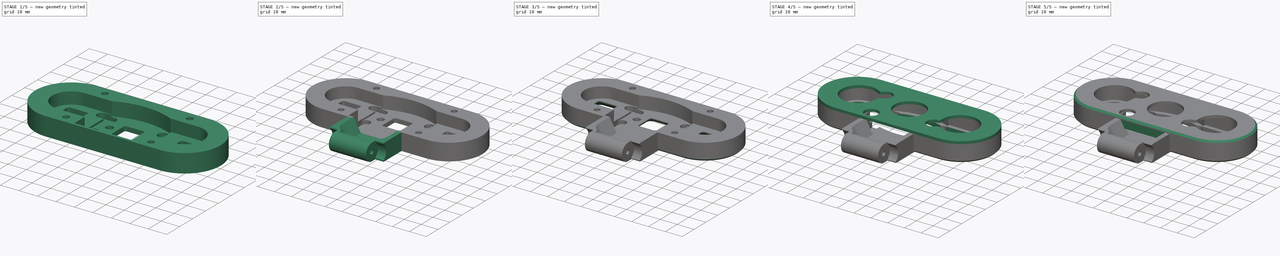
[diagram: build sequence overview — one tinted view per stage of 5, left to right]
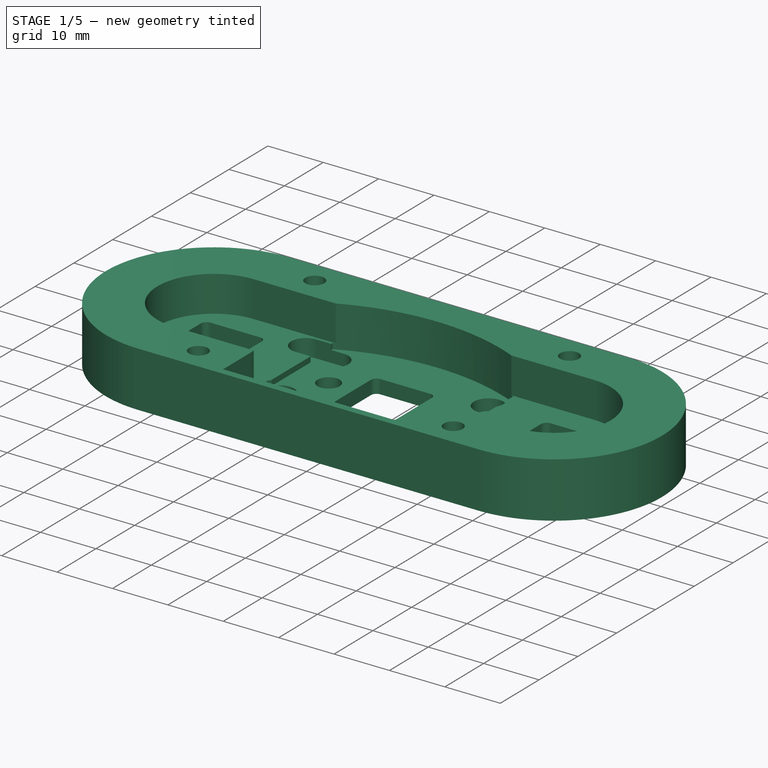
[diagram: stage 1 of 5 — iso view after this stage's code; geometry added in this stage tinted green]
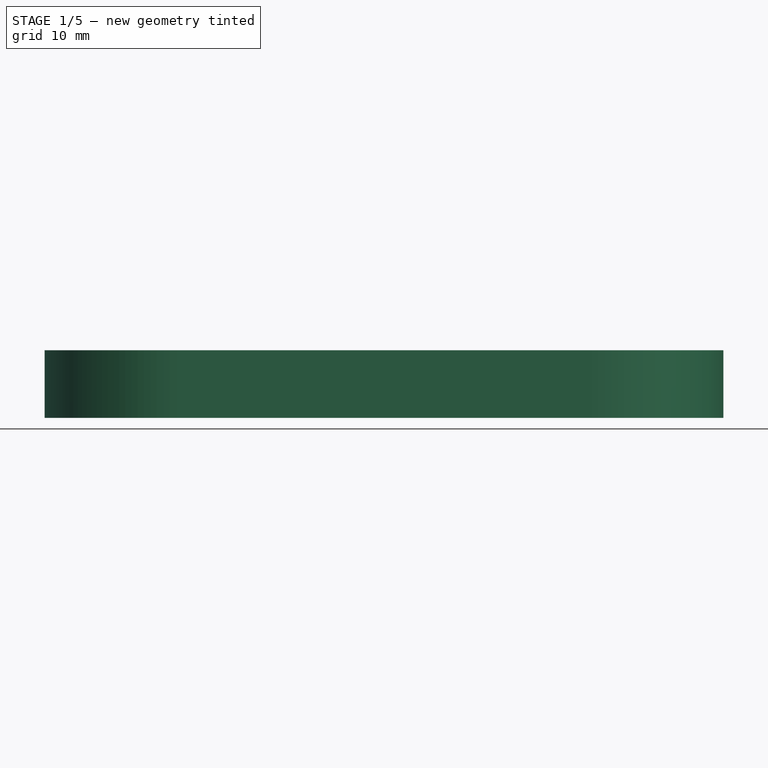
[diagram: stage 1 of 5 — front view after this stage's code; geometry added in this stage tinted green]
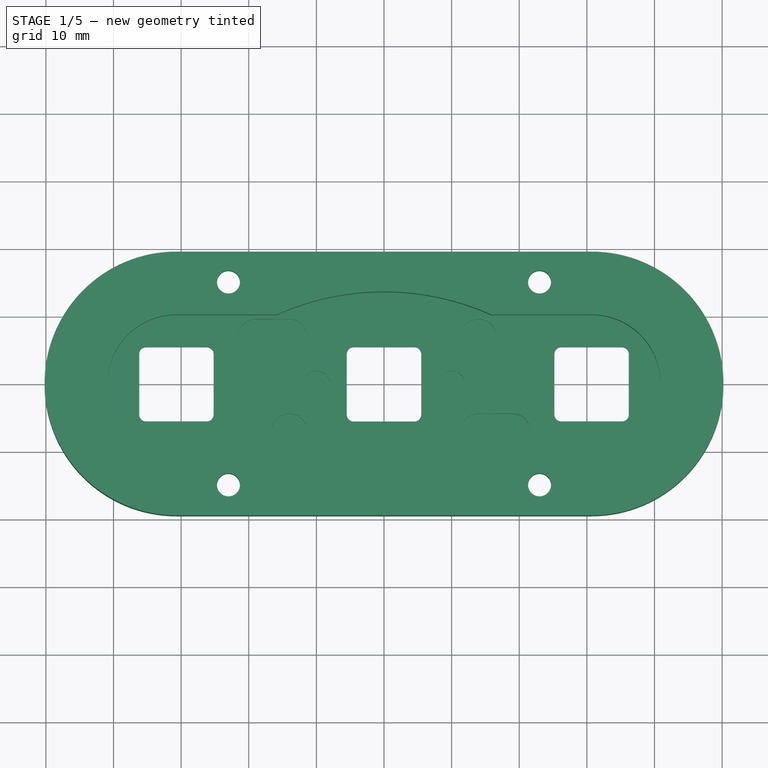
[diagram: stage 1 of 5 — top view after this stage's code; geometry added in this stage tinted green]
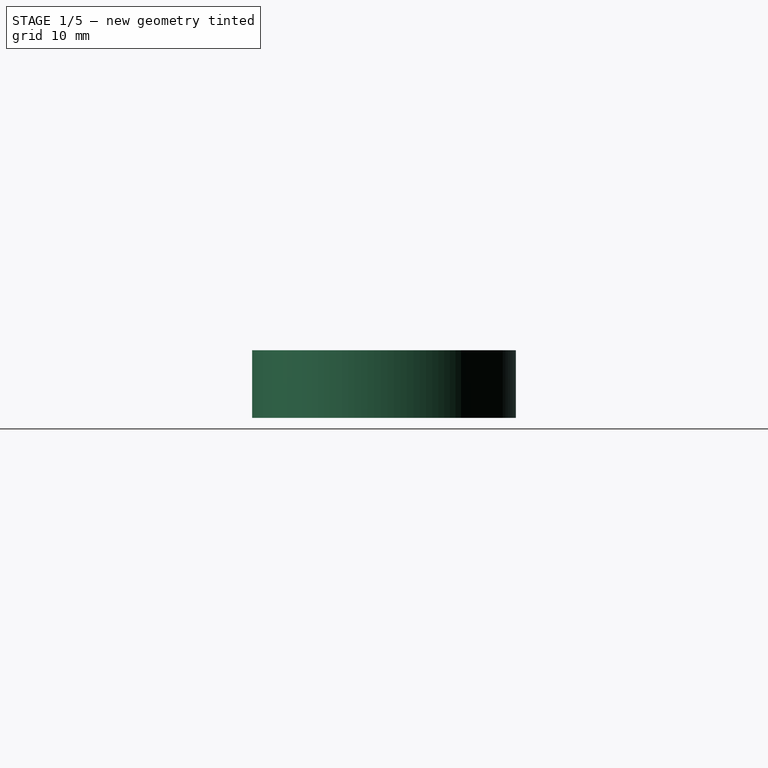
[diagram: stage 1 of 5 — right view after this stage's code; geometry added in this stage tinted green]
FCSTD DOCUMENT  (FreeCAD 0.21R33771 (Git))
Label: _Raspi_IR-Cam_Case
License: Creative Commons Attribution 4.0
objects: Sketcher::SketchObject×22, PartDesign::Pocket×10, PartDesign::Pad×7, PartDesign::Chamfer×6, PartDesign::Body×3, PartDesign::Hole×2, PartDesign::SubtractivePipe×1, PartDesign::Mirrored×1, PartDesign::Fillet×1, PartDesign::FeatureBase×1
note: 81 computed .brp shape members not serialized (recipe doc carries the construction recipe); baked Part::Feature solids carry a one-line shape summary decoded from their .brp

FEATURE [Sketcher::SketchObject] Sketch  label="Master-Sketch_Back"
  FullyConstrained = false
  MapMode = 5
  Support = -> [XY_Plane]
  sketch-geometry (32):
    g0: LineSegment StartX=-15.9 StartY=8.95 StartZ=0 EndX=-15.9 EndY=-17.85 EndZ=0
    g1: LineSegment StartX=-15.9 StartY=-17.85 StartZ=0 EndX=15.9 EndY=-17.85 EndZ=0
    g2: LineSegment StartX=15.9 StartY=-17.85 StartZ=0 EndX=15.9 EndY=8.95 EndZ=0
    g3: LineSegment StartX=15.9 StartY=8.95 StartZ=0 EndX=-15.9 EndY=8.95 EndZ=0
    g4: ArcOfCircle CenterX=-30.5 CenterY=-1.8e-14 CenterZ=0 NormalX=0 NormalY=0 NormalZ=1 AngleXU=0 Radius=9.8 StartAngle=1.5708 EndAngle=4.71239
    g5: ArcOfCircle CenterX=30.5 CenterY=-2.16e-14 CenterZ=0 NormalX=0 NormalY=0 NormalZ=1 AngleXU=0 Radius=9.8 StartAngle=4.71239 EndAngle=7.85398
    g6: LineSegment StartX=-30.5 StartY=9.8 StartZ=0 EndX=30.5 EndY=9.8 EndZ=0
    g7: LineSegment StartX=-30.5 StartY=-9.8 StartZ=0 EndX=30.5 EndY=-9.8 EndZ=0
    g8: GeomPoint X=3.08e-14 Y=-6e-15 Z=0
    g9: Circle CenterX=-14 CenterY=7 CenterZ=0 NormalX=0 NormalY=0 NormalZ=1 AngleXU=0 Radius=2.3
    g10: Circle CenterX=14 CenterY=7 CenterZ=0 NormalX=0 NormalY=0 NormalZ=1 AngleXU=0 Radius=2.3
    g11: Circle CenterX=14 CenterY=-7 CenterZ=0 NormalX=0 NormalY=0 NormalZ=1 AngleXU=0 Radius=2.3
    g12: Circle CenterX=-14 CenterY=-7 CenterZ=0 NormalX=0 NormalY=0 NormalZ=1 AngleXU=0 Radius=2.3
    g13: GeomPoint X=3.08e-14 Y=-6e-15 Z=0
    g14: Circle CenterX=-10 CenterY=0 CenterZ=0 NormalX=0 NormalY=0 NormalZ=1 AngleXU=0 Radius=1.65
    g15: Circle CenterX=10 CenterY=0 CenterZ=0 NormalX=0 NormalY=0 NormalZ=1 AngleXU=0 Radius=1.64245
    g16: LineSegment StartX=25.5 StartY=5 StartZ=0 EndX=25.5 EndY=-5 EndZ=0
    g17: LineSegment StartX=25.5 StartY=-5 StartZ=0 EndX=35.5 EndY=-5 EndZ=0
    g18: LineSegment StartX=35.5 StartY=-5 StartZ=0 EndX=35.5 EndY=5 EndZ=0
    g19: LineSegment StartX=35.5 StartY=5 StartZ=0 EndX=25.5 EndY=5 EndZ=0
    g20: GeomPoint X=30.5 Y=-2.16e-14 Z=0
    g21: LineSegment StartX=-35.5 StartY=5 StartZ=0 EndX=-35.5 EndY=-5 EndZ=0
    g22: LineSegment StartX=-35.5 StartY=-5 StartZ=0 EndX=-25.5 EndY=-5 EndZ=0
    g23: LineSegment StartX=-25.5 StartY=-5 StartZ=0 EndX=-25.5 EndY=5 EndZ=0
    g24: LineSegment StartX=-25.5 StartY=5 StartZ=0 EndX=-35.5 EndY=5 EndZ=0
    g25: GeomPoint X=-30.5 Y=-1.8e-14 Z=0
    g26: LineSegment StartX=-5 StartY=5 StartZ=0 EndX=-5 EndY=-5 EndZ=0
    g27: LineSegment StartX=-5 StartY=-5 StartZ=0 EndX=5 EndY=-5 EndZ=0
    g28: LineSegment StartX=5 StartY=-5 StartZ=0 EndX=5 EndY=5 EndZ=0
    g29: LineSegment StartX=5 StartY=5 StartZ=0 EndX=-5 EndY=5 EndZ=0
    g30: GeomPoint X=3.08e-14 Y=-6e-15 Z=0
    g31: GeomPoint X=-39.3023 Y=-30.5777 Z=0
  constraints (73):
    c: Coincident(g0,g1)
    c: Coincident(g1,g2)
    c: Coincident(g2,g3)
    c: Coincident(g3,g0)
    c: Vertical(g0)
    c: Vertical(g2)
    c: Horizontal(g3)
    c: Symmetric(g0,g1,g-2)
    c: DistanceX(g1,g1) = 31.8
    c: DistanceY(g2,g2) = 26.8
    c: Tangent(g4,g6) = 1.5708
    c: Tangent(g4,g7) = -1.5708
    c: Tangent(g5,g6) = 1.5708
    c: Tangent(g5,g7) = -1.5708
    c: Equal(g4,g5)
    c: Horizontal(g6)
    c: Symmetric(g5,g4,g8)
    c: Coincident(g8,g-1)
    c: Distance(g4,g4) = 19.6
    c: DistanceX(g6,g6) = 61
    c: DistanceY(g2,g5) = 0.85
    c: Horizontal(g9,g10)
    c: Horizontal(g12,g11)
    c: Vertical(g11,g10)
    c: Vertical(g12,g9)
    c: DistanceY(g12,g9) = 14
    c: DistanceX(g9,g10) = 28
    c: Symmetric(g12,g10,g13)
    c: Coincident(g8,g13)
    c: Diameter(g9) = 4.6
    c: Equal(g9,g10)
    c: Equal(g10,g11)
    c: Equal(g11,g12)
    c: PointOnObject(g14,g-1)
    c: Symmetric(g15,g14,g-2)
    c: DistanceX(g14,g15) = 20
    c: Diameter(g14) = 3.3
    c: Coincident(g16,g17)
    c: Coincident(g17,g18)
    c: Coincident(g18,g19)
    c: Coincident(g19,g16)
    c: Vertical(g16)
    c: Vertical(g18)
    c: Horizontal(g17)
    c: Horizontal(g19)
    c: Equal(g16,g19)
    c: Symmetric(g16,g18,g20)
    c: Coincident(g21,g22)
    c: Coincident(g22,g23)
    c: Coincident(g23,g24)
    c: Coincident(g24,g21)
    c: Vertical(g21)
    c: Vertical(g23)
    c: Horizontal(g22)
    c: Horizontal(g24)
    c: Equal(g21,g24)
    c: DistanceY(g21,g21) = 10
    c: Symmetric(g21,g23,g25)
    c: Coincident(g26,g27)
    c: Coincident(g27,g28)
    c: Coincident(g28,g29)
    c: Coincident(g29,g26)
    c: Vertical(g26)
    c: Vertical(g28)
    c: Horizontal(g27)
    c: Horizontal(g29)
    c: Equal(g26,g29)
    c: Symmetric(g26,g28,g30)
    c: Equal(g22,g27)
    c: Equal(g27,g17)
    c: Coincident(g25,g4)
    c: Coincident(g30,g8)
    c: Coincident(g20,g5)
FEATURE [Sketcher::SketchObject] Sketch001
  ExternalGeometry = -> [Sketch]
  FullyConstrained = true
  MapMode = 5
  Support = -> [XY_Plane]
  sketch-geometry (4):
    g0: ArcOfCircle CenterX=-30.7 CenterY=-1.6e-15 CenterZ=0 NormalX=0 NormalY=0 NormalZ=1 AngleXU=0 Radius=19.5 StartAngle=1.5708 EndAngle=4.71239
    g1: ArcOfCircle CenterX=30.7 CenterY=1.6e-15 CenterZ=0 NormalX=0 NormalY=0 NormalZ=1 AngleXU=0 Radius=19.5 StartAngle=4.71239 EndAngle=7.85398
    g2: LineSegment StartX=-30.7 StartY=19.5 StartZ=0 EndX=30.7 EndY=19.5 EndZ=0
    g3: LineSegment StartX=-30.7 StartY=-19.5 StartZ=0 EndX=30.7 EndY=-19.5 EndZ=0
  constraints (9):
    c: Horizontal(g2)
    c: Tangent(g2,g0) = 1.5708
    c: Tangent(g3,g0) = -1.5708
    c: Tangent(g3,g1) = -1.5708
    c: Tangent(g2,g1) = 1.5708
    c: DistanceY(g0,g0) = 39
    c: Symmetric(g0,g1,g-1)
    c: Equal(g0,g1)
    c: DistanceX(g0,g1) = 61.4
FEATURE [Sketcher::SketchObject] Sketch002
  FullyConstrained = true
  MapMode = 5
  Support = -> [XY_Plane]
  expr: Constraints[5] = Sketch001.Constraints[8]
  sketch-geometry (4):
    g0: ArcOfCircle CenterX=-30.7 CenterY=-4e-16 CenterZ=0 NormalX=0 NormalY=0 NormalZ=1 AngleXU=0 Radius=10.2 StartAngle=1.5708 EndAngle=4.71239
    g1: ArcOfCircle CenterX=30.7 CenterY=4e-16 CenterZ=0 NormalX=0 NormalY=0 NormalZ=1 AngleXU=0 Radius=10.2 StartAngle=4.71239 EndAngle=7.85398
    g2: LineSegment StartX=-30.7 StartY=10.2 StartZ=0 EndX=30.7 EndY=10.2 EndZ=0
    g3: LineSegment StartX=-30.7 StartY=-10.2 StartZ=0 EndX=30.7 EndY=-10.2 EndZ=0
  constraints (9):
    c: Horizontal(g2)
    c: Tangent(g2,g0) = 1.5708
    c: Tangent(g2,g1) = 1.5708
    c: Symmetric(g0,g1,g-1)
    c: Equal(g0,g1)
    c: DistanceX(g0,g1) = 61.4
    c: Distance(g0,g0) = 20.4
    c: Tangent(g3,g1) = -1.5708
    c: Tangent(g3,g0) = -1.5708
FEATURE [Sketcher::SketchObject] Sketch003
  FullyConstrained = true
  MapMode = 5
  Support = -> [XY_Plane]
  sketch-geometry (6):
    g0: LineSegment StartX=-16.3 StartY=10 StartZ=0 EndX=-16.3 EndY=-18.2 EndZ=0
    g1: LineSegment StartX=-16.3 StartY=-18.2 StartZ=0 EndX=16.3 EndY=-18.2 EndZ=0
    g2: LineSegment StartX=16.3 StartY=-18.2 StartZ=0 EndX=16.3 EndY=10 EndZ=0
    g3: GeomPoint X=0 Y=-4.1 Z=0
    g4: ArcOfCircle CenterX=-2.9e-15 CenterY=-25.1014 CenterZ=0 NormalX=0 NormalY=0 NormalZ=1 AngleXU=0 Radius=38.7014 StartAngle=1.13606 EndAngle=2.00554
    g5: GeomPoint X=0 Y=13.6 Z=0
  constraints (16):
    c: Coincident(g0,g1)
    c: Coincident(g1,g2)
    c: Vertical(g0)
    c: Vertical(g2)
    c: Horizontal(g1)
    c: Symmetric(g0,g2,g3)
    c: PointOnObject(g3,g-2)
    c: DistanceX(g1,g1) = 32.6
    c: Horizontal(g2,g0)
    c: Coincident(g4,g0)
    c: Coincident(g4,g2)
    c: PointOnObject(g5,g4)
    c: PointOnObject(g5,g-2)
    c: DistanceY(g0,g-1) = 18.2
    c: DistanceY(g0,g5) = 3.6
    c: DistanceY(g-1,g0) = 10
FEATURE [Sketcher::SketchObject] Sketch004
  ExternalGeometry = -> [Sketch]
  FullyConstrained = true
  MapMode = 5
  Support = -> [XY_Plane]
  expr: Constraints[69] = Sketch001.Constraints[8]
  sketch-geometry (32):
    g0: ArcOfCircle CenterX=-4.5 CenterY=4.5 CenterZ=0 NormalX=0 NormalY=0 NormalZ=1 AngleXU=0 Radius=1 StartAngle=1.5708 EndAngle=3.14159
    g1: LineSegment StartX=-4.5 StartY=5.5 StartZ=0 EndX=4.5 EndY=5.5 EndZ=0
    g2: ArcOfCircle CenterX=4.5 CenterY=4.5 CenterZ=0 NormalX=0 NormalY=0 NormalZ=1 AngleXU=0 Radius=1 StartAngle=6e-16 EndAngle=1.5708
    g3: LineSegment StartX=5.5 StartY=4.5 StartZ=0 EndX=5.5 EndY=-4.5 EndZ=0
    g4: ArcOfCircle CenterX=4.5 CenterY=-4.5 CenterZ=0 NormalX=0 NormalY=0 NormalZ=1 AngleXU=0 Radius=1 StartAngle=4.71239 EndAngle=6.28319
    g5: LineSegment StartX=4.5 StartY=-5.5 StartZ=0 EndX=-4.5 EndY=-5.5 EndZ=0
    g6: ArcOfCircle CenterX=-4.5 CenterY=-4.5 CenterZ=0 NormalX=0 NormalY=0 NormalZ=1 AngleXU=0 Radius=1 StartAngle=3.14159 EndAngle=4.71239
    g7: LineSegment StartX=-5.5 StartY=-4.5 StartZ=0 EndX=-5.5 EndY=4.5 EndZ=0
    g8: GeomPoint X=-5.5 Y=5.5 Z=0
    g9: GeomPoint X=5.5 Y=-5.5 Z=0
    g10: ArcOfCircle CenterX=-26.2 CenterY=-4.5 CenterZ=0 NormalX=0 NormalY=0 NormalZ=1 AngleXU=0 Radius=1 StartAngle=4.71239 EndAngle=6.28319
    g11: LineSegment StartX=-26.2 StartY=-5.5 StartZ=0 EndX=-35.2 EndY=-5.5 EndZ=0
    g12: ArcOfCircle CenterX=-35.2 CenterY=-4.5 CenterZ=0 NormalX=0 NormalY=0 NormalZ=1 AngleXU=0 Radius=1 StartAngle=3.14159 EndAngle=4.71239
    g13: GeomPoint X=-25.2 Y=-5.5 Z=0
    g14: ArcOfCircle CenterX=-35.2 CenterY=4.5 CenterZ=0 NormalX=0 NormalY=0 NormalZ=1 AngleXU=0 Radius=1 StartAngle=1.5708 EndAngle=3.14159
    g15: LineSegment StartX=-35.2 StartY=5.5 StartZ=0 EndX=-26.2 EndY=5.5 EndZ=0
    g16: ArcOfCircle CenterX=-26.2 CenterY=4.5 CenterZ=0 NormalX=0 NormalY=0 NormalZ=1 AngleXU=0 Radius=1 StartAngle=0 EndAngle=1.5708
    g17: LineSegment StartX=-25.2 StartY=4.5 StartZ=0 EndX=-25.2 EndY=-4.5 EndZ=0
    g18: LineSegment StartX=-36.2 StartY=-4.5 StartZ=0 EndX=-36.2 EndY=4.5 EndZ=0
    g19: GeomPoint X=-36.2 Y=5.5 Z=0
    g20: GeomPoint X=-30.7 Y=0 Z=0
    g21: ArcOfCircle CenterX=35.2 CenterY=-4.5 CenterZ=0 NormalX=0 NormalY=0 NormalZ=1 AngleXU=0 Radius=1 StartAngle=4.71239 EndAngle=6.28319
    g22: LineSegment StartX=35.2 StartY=-5.5 StartZ=0 EndX=26.2 EndY=-5.5 EndZ=0
    g23: ArcOfCircle CenterX=26.2 CenterY=-4.5 CenterZ=0 NormalX=0 NormalY=0 NormalZ=1 AngleXU=0 Radius=1 StartAngle=3.14159 EndAngle=4.71239
    g24: GeomPoint X=36.2 Y=-5.5 Z=0
    g25: ArcOfCircle CenterX=26.2 CenterY=4.5 CenterZ=0 NormalX=0 NormalY=0 NormalZ=1 AngleXU=0 Radius=1 StartAngle=1.5708 EndAngle=3.14159
    g26: LineSegment StartX=26.2 StartY=5.5 StartZ=0 EndX=35.2 EndY=5.5 EndZ=0
    g27: ArcOfCircle CenterX=35.2 CenterY=4.5 CenterZ=0 NormalX=0 NormalY=0 NormalZ=1 AngleXU=0 Radius=1 StartAngle=0 EndAngle=1.5708
    g28: LineSegment StartX=36.2 StartY=4.5 StartZ=0 EndX=36.2 EndY=-4.5 EndZ=0
    g29: LineSegment StartX=25.2 StartY=-4.5 StartZ=0 EndX=25.2 EndY=4.5 EndZ=0
    g30: GeomPoint X=25.2 Y=5.5 Z=0
    g31: GeomPoint X=30.7 Y=0 Z=0
  constraints (72):
    c: Tangent(g0,g1) = 1.5708
    c: Tangent(g1,g2) = 1.5708
    c: Tangent(g2,g3) = 1.5708
    c: Tangent(g3,g4) = 1.5708
    c: Tangent(g4,g5) = 1.5708
    c: Tangent(g5,g6) = 1.5708
    c: Tangent(g6,g7) = 1.5708
    c: Tangent(g7,g0) = 1.5708
    c: Horizontal(g1)
    c: Horizontal(g5)
    c: Vertical(g3)
    c: Vertical(g7)
    c: Equal(g0,g2)
    c: Equal(g2,g4)
    c: Equal(g4,g6)
    c: PointOnObject(g8,g1)
    c: PointOnObject(g8,g7)
    c: PointOnObject(g9,g3)
    c: PointOnObject(g9,g5)
    c: Symmetric(g6,g2,g-1)
    c: DistanceY(g5,g0) = 11
    c: Equal(g5,g7)
    c: Radius(g4) = 1
    c: Tangent(g14,g15) = 1.5708
    c: Tangent(g15,g16) = 1.5708
    c: Tangent(g16,g17) = 1.5708
    c: Tangent(g17,g10) = 1.5708
    c: Tangent(g10,g11) = 1.5708
    c: Tangent(g11,g12) = 1.5708
    c: Tangent(g12,g18) = 1.5708
    c: Tangent(g18,g14) = 1.5708
    c: Horizontal(g15)
    c: Horizontal(g11)
    c: Vertical(g17)
    c: Vertical(g18)
    c: Equal(g14,g16)
    c: Equal(g16,g10)
    c: Equal(g10,g12)
    c: PointOnObject(g19,g15)
    c: PointOnObject(g19,g18)
    c: PointOnObject(g13,g17)
    c: PointOnObject(g13,g11)
    c: Equal(g11,g18)
    c: Radius(g10) = 1
    c: Symmetric(g12,g16,g20)
    c: Equal(g7,g18)
    c: Tangent(g25,g26) = 1.5708
    c: Tangent(g26,g27) = 1.5708
    c: Tangent(g27,g28) = 1.5708
    c: Tangent(g28,g21) = 1.5708
    c: Tangent(g21,g22) = 1.5708
    c: Tangent(g22,g23) = 1.5708
    c: Tangent(g23,g29) = 1.5708
    c: Tangent(g29,g25) = 1.5708
    c: Horizontal(g26)
    c: Horizontal(g22)
    c: Vertical(g28)
    c: Vertical(g29)
    c: Equal(g25,g27)
    c: Equal(g27,g21)
    c: Equal(g21,g23)
    c: PointOnObject(g30,g26)
    c: PointOnObject(g30,g29)
    c: PointOnObject(g24,g28)
    c: PointOnObject(g24,g22)
    c: Equal(g22,g29)
    c: Radius(g21) = 1
    c: Symmetric(g23,g27,g31)
    c: Symmetric(g20,g31,g-2)
    c: DistanceX(g20,g31) = 61.4
    c: PointOnObject(g20,g-1)
    c: Equal(g18,g29)
FEATURE [PartDesign::Pad] Pad
  Direction = (0,0,1)
  Length = 10
  Length2 = 10
  Profile = -> Sketch001
  ReferenceAxis = -> Sketch001 [N_Axis]
  Reversed = true
  Type = 0
FEATURE [Sketcher::SketchObject] Sketch011
  AttachmentOffset = pos=(0,0,-10) rot=(0,0,1;0rad)
  FullyConstrained = true
  MapMode = 5
  Placement = pos=(0,0,-10) rot=(0,0,1;0rad)
  Support = -> [XY_Plane]
  expr: .AttachmentOffset.Base.z = -Pad.Length
  sketch-geometry (4):
    g0: Circle CenterX=-23 CenterY=15 CenterZ=0 NormalX=0 NormalY=0 NormalZ=1 AngleXU=0 Radius=1.65
    g1: Circle CenterX=23 CenterY=15 CenterZ=0 NormalX=0 NormalY=0 NormalZ=1 AngleXU=0 Radius=1.65
    g2: Circle CenterX=-23 CenterY=-15 CenterZ=0 NormalX=0 NormalY=0 NormalZ=1 AngleXU=0 Radius=1.65
    g3: Circle CenterX=23 CenterY=-15 CenterZ=0 NormalX=0 NormalY=0 NormalZ=1 AngleXU=0 Radius=1.65
  constraints (11):
    c: DistanceY(g2,g0) = 30
    c: DistanceX(g0,g1) = 46
    c: Horizontal(g0,g1)
    c: Horizontal(g3,g2)
    c: Vertical(g2,g0)
    c: Vertical(g1,g3)
    c: Symmetric(g1,g2,g-1)
    c: Equal(g3,g2)
    c: Equal(g2,g0)
    c: Equal(g0,g1)
    c: Diameter(g3) = 3.3
FEATURE [PartDesign::Hole] Hole
  BaseFeature = -> Pad
  CustomThreadClearance = 0
  Depth = 218.533
  DepthType = 1
  Diameter = 3.4
  DrillForDepth = false
  DrillPoint = 1
  DrillPointAngle = 118
  HoleCutCountersinkAngle = 90
  HoleCutCustomValues = false
  HoleCutDepth = 3.4
  HoleCutDiameter = 6.1
  HoleCutType = 1
  ModelThread = false
  Profile = -> Sketch011
  Refine = true
  Reversed = true
  Tapered = false
  TaperedAngle = 90
  ThreadClass = 0
  ThreadDepth = 218.533
  ThreadDepthType = 0
  ThreadDirection = 0
  ThreadFit = 0
  ThreadSize = 9
  ThreadType = 1
  Threaded = false
  UseCustomThreadClearance = false
FEATURE [PartDesign::Pocket] Pocket
  BaseFeature = -> Hole
  Direction = (0,0,-1)
  Length = 6.5
  Length2 = 5
  Profile = -> Sketch002
  ReferenceAxis = -> Sketch002 [N_Axis]
  Refine = true
  Type = 0
FEATURE [PartDesign::Pocket] Pocket001
  BaseFeature = -> Pocket
  Direction = (0,0,-1)
  Length = 7.5
  Length2 = 5
  Profile = -> Sketch003
  ReferenceAxis = -> Sketch003 [N_Axis]
  Refine = true
  Type = 0
FEATURE [PartDesign::Pocket] Pocket002
  BaseFeature = -> Pocket001
  Direction = (0,0,-1)
  Length = 5
  Length2 = 5
  Profile = -> Sketch004
  ReferenceAxis = -> Sketch004 [N_Axis]
  Refine = true
  Type = 1
FEATURE [Sketcher::SketchObject] Sketch005
  FullyConstrained = true
  MapMode = 5
  Support = -> [XY_Plane]
  sketch-geometry (16):
    g0: ArcOfCircle CenterX=14 CenterY=-7 CenterZ=0 NormalX=0 NormalY=0 NormalZ=1 AngleXU=0 Radius=2.65 StartAngle=1.5708 EndAngle=4.71239
    g1: ArcOfCircle CenterX=19 CenterY=-7 CenterZ=0 NormalX=0 NormalY=0 NormalZ=1 AngleXU=0 Radius=2.65 StartAngle=4.71239 EndAngle=7.85398
    g2: LineSegment StartX=14 StartY=-9.65 StartZ=0 EndX=19 EndY=-9.65 EndZ=0
    g3: LineSegment StartX=19 StartY=-4.35 StartZ=0 EndX=14 EndY=-4.35 EndZ=0
    g4: Circle CenterX=-10 CenterY=0 CenterZ=0 NormalX=0 NormalY=0 NormalZ=1 AngleXU=0 Radius=2
    g5: Circle CenterX=10 CenterY=0 CenterZ=0 NormalX=0 NormalY=0 NormalZ=1 AngleXU=0 Radius=2
    g6: Circle CenterX=14 CenterY=7 CenterZ=0 NormalX=0 NormalY=0 NormalZ=1 AngleXU=0 Radius=2.65
    g7: ArcOfCircle CenterX=-19 CenterY=7 CenterZ=0 NormalX=0 NormalY=0 NormalZ=1 AngleXU=0 Radius=2.65 StartAngle=1.5708 EndAngle=4.71239
    g8: ArcOfCircle CenterX=-14 CenterY=7 CenterZ=0 NormalX=0 NormalY=0 NormalZ=1 AngleXU=0 Radius=2.65 StartAngle=4.71239 EndAngle=7.85398
    g9: LineSegment StartX=-19 StartY=4.35 StartZ=0 EndX=-14 EndY=4.35 EndZ=0
    g10: LineSegment StartX=-14 StartY=9.65 StartZ=0 EndX=-19 EndY=9.65 EndZ=0
    g11: ArcOfCircle CenterX=-14 CenterY=-7 CenterZ=0 NormalX=0 NormalY=0 NormalZ=1 AngleXU=0 Radius=2.65 StartAngle=0 EndAngle=3.23244
    g12: ArcOfCircle CenterX=-13.65 CenterY=-14.7 CenterZ=0 NormalX=0 NormalY=0 NormalZ=1 AngleXU=0 Radius=2.3 StartAngle=3.23244 EndAngle=6.28319
    g13: LineSegment StartX=-16.6391 StartY=-7.24041 StartZ=0 EndX=-15.9405 EndY=-14.9087 EndZ=0
    g14: LineSegment StartX=-11.35 StartY=-14.7 StartZ=0 EndX=-11.35 EndY=-7 EndZ=0
    g15: GeomPoint X=-13.65 Y=-17 Z=0
  constraints (39):
    c: Tangent(g0,g2) = -1.5708
    c: Tangent(g2,g1) = -1.5708
    c: Tangent(g1,g3) = -1.5708
    c: Tangent(g3,g0) = -1.5708
    c: Equal(g0,g1)
    c: Horizontal(g2)
    c: DistanceX(g2,g2) = 5
    c: Equal(g4,g5)
    c: Symmetric(g4,g5,g-2)
    c: PointOnObject(g4,g-1)
    c: DistanceX(g4,g5) = 20
    c: Diameter(g5) = 4
    c: Tangent(g7,g9) = -1.5708
    c: Tangent(g9,g8) = -1.5708
    c: Tangent(g8,g10) = -1.5708
    c: Tangent(g10,g7) = -1.5708
    c: Equal(g7,g8)
    c: Horizontal(g9)
    c: DistanceY(g1,g6) = 14
    c: DistanceX(g8,g6) = 28
    c: Horizontal(g8,g6)
    c: Vertical(g8,g11)
    c: Horizontal(g11,g0)
    c: Radius(g0) = 2.65
    c: Symmetric(g11,g6,g-1)
    c: Equal(g0,g6)
    c: Equal(g6,g8)
    c: Equal(g8,g11)
    c: Equal(g3,g9)
    c: Vertical(g6,g0)
    c: Vertical(g14)
    c: Tangent(g14,g11) = -1.5708
    c: Tangent(g14,g12) = -1.5708
    c: Tangent(g13,g12) = -1.5708
    c: Tangent(g13,g11) = -1.5708
    c: PointOnObject(g15,g12)
    c: Vertical(g12,g15)
    c: DistanceY(g15,g11) = 10
    c: Radius(g12) = 2.3
FEATURE [PartDesign::Pocket] Pocket003
  BaseFeature = -> Pocket002
  Direction = (0,0,-1)
  Length = 9.6
  Length2 = 5
  Profile = -> Sketch005
  ReferenceAxis = -> Sketch005 [N_Axis]
  Type = 0
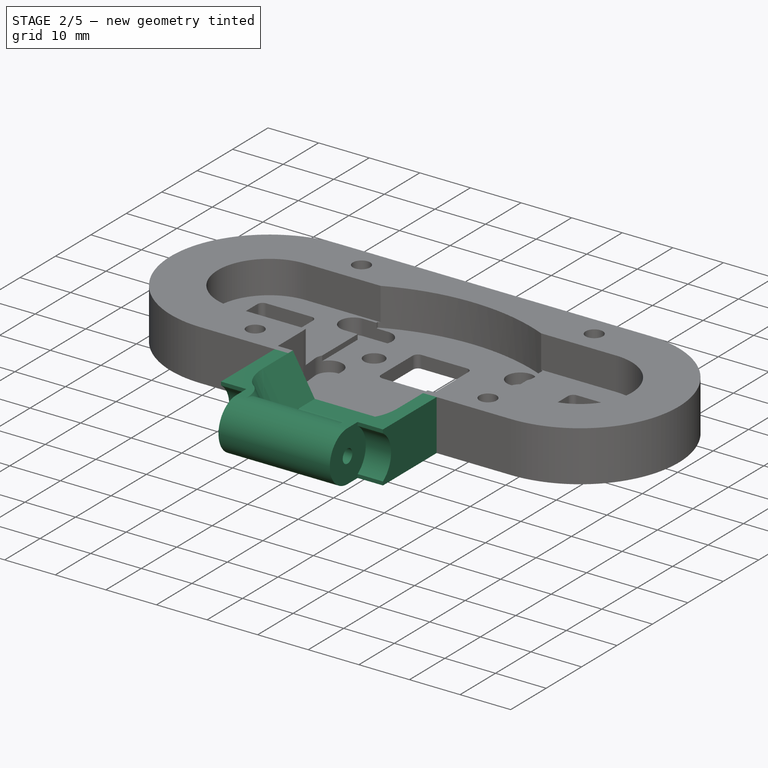
[diagram: stage 2 of 5 — iso view after this stage's code; geometry added in this stage tinted green]
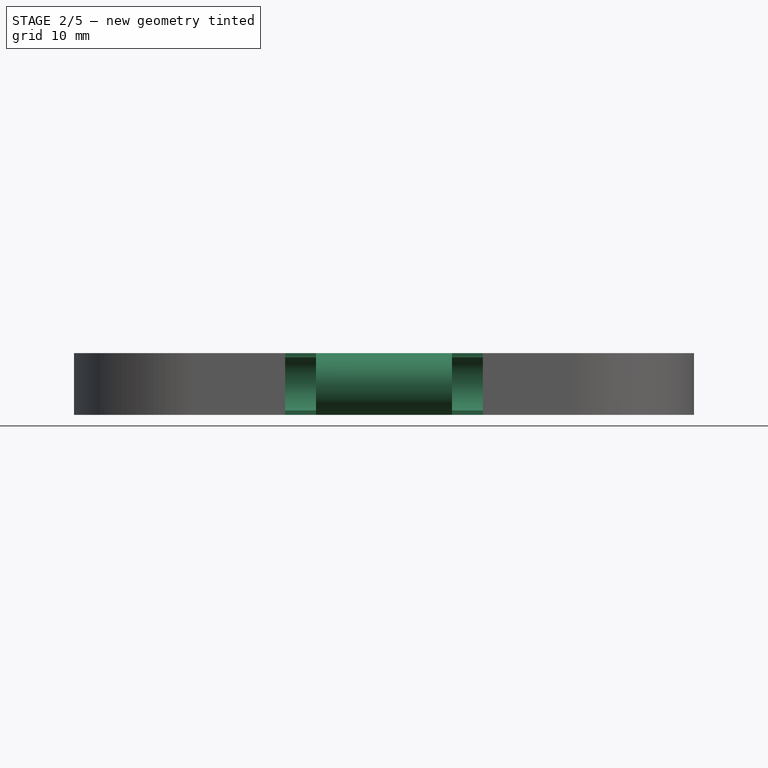
[diagram: stage 2 of 5 — front view after this stage's code; geometry added in this stage tinted green]
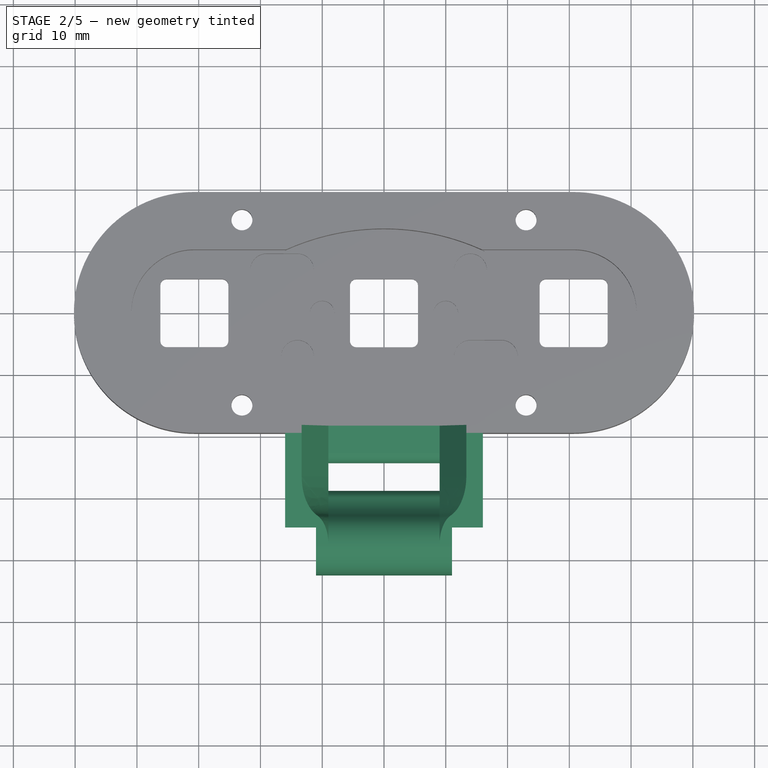
[diagram: stage 2 of 5 — top view after this stage's code; geometry added in this stage tinted green]
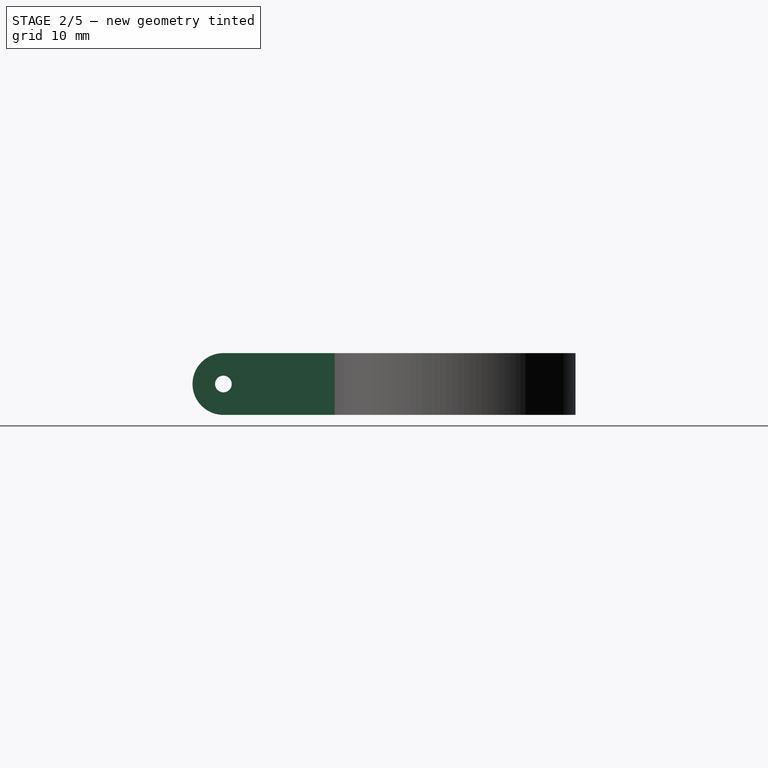
[diagram: stage 2 of 5 — right view after this stage's code; geometry added in this stage tinted green]
FEATURE [Sketcher::SketchObject] Sketch006
  FullyConstrained = true
  MapMode = 5
  Placement = pos=(0,0,0) rot=(1,0,0;1.5708rad)
  Support = -> [XZ_Plane]
  sketch-geometry (4):
    g0: LineSegment StartX=-13.9075 StartY=1 StartZ=0 EndX=-9 EndY=-7.5 EndZ=0
    g1: LineSegment StartX=-9 StartY=-7.5 StartZ=0 EndX=9 EndY=-7.5 EndZ=0
    g2: LineSegment StartX=9 StartY=-7.5 StartZ=0 EndX=13.9075 EndY=1 EndZ=0
    g3: LineSegment StartX=13.9075 StartY=1 StartZ=0 EndX=-13.9075 EndY=1 EndZ=0
  constraints (11):
    c: Coincident(g0,g1)
    c: Coincident(g1,g2)
    c: Coincident(g2,g3)
    c: Coincident(g3,g0)
    c: Horizontal(g3)
    c: Equal(g0,g2)
    c: Symmetric(g0,g1,g-2)
    c: DistanceY(g0,g-1) = 7.5
    c: DistanceY(g-1,g0) = 1
    c: DistanceX(g1,g1) = 18
    c: Angle(g2,g0) = 1.0472
FEATURE [PartDesign::Pocket] Pocket004
  BaseFeature = -> Pocket003
  Direction = (0,1,2e-16)
  Length = 5
  Length2 = 5
  Profile = -> Sketch006
  ReferenceAxis = -> Sketch006 [N_Axis]
  Reversed = true
  Type = 1
FEATURE [Sketcher::SketchObject] Sketch007
  FullyConstrained = true
  MapMode = 5
  Placement = pos=(0,0,0) rot=(0.57735,0.57735,0.57735;2.0944rad)
  Support = -> [YZ_Plane]
  expr: Constraints[11] = Pad.Length
  sketch-geometry (5):
    g0: LineSegment StartX=-19.5 StartY=2e-16 StartZ=0 EndX=-37.5 EndY=2e-16 EndZ=0
    g1: ArcOfCircle CenterX=-37.5 CenterY=-5 CenterZ=0 NormalX=0 NormalY=0 NormalZ=1 AngleXU=0 Radius=5 StartAngle=1.5708 EndAngle=4.71239
    g2: LineSegment StartX=-37.5 StartY=-10 StartZ=0 EndX=-19.5 EndY=-10 EndZ=0
    g3: LineSegment StartX=-19.5 StartY=-10 StartZ=0 EndX=-19.5 EndY=0 EndZ=0
    g4: Circle CenterX=-37.5 CenterY=-5 CenterZ=0 NormalX=0 NormalY=0 NormalZ=1 AngleXU=0 Radius=1.35
  constraints (13):
    c: Tangent(g0,g1) = -1.5708
    c: Tangent(g1,g2) = -1.5708
    c: Coincident(g2,g3)
    c: Coincident(g3,g0)
    c: Vertical(g3)
    c: DistanceX(g0,g-1) = 19.5
    c: Horizontal(g2)
    c: DistanceX(g0,g0) = 18
    c: Coincident(g4,g1)
    c: Diameter(g4) = 2.7
    c: DistanceY(g1,g0) = 10
    c: DistanceY(g2,g-1) = 10
    c: Horizontal(g0)
FEATURE [PartDesign::Pad] Pad001
  BaseFeature = -> Pocket004
  Direction = (1,-2e-16,3e-16)
  Length = 32
  Length2 = 10
  Midplane = true
  Profile = -> Sketch007
  ReferenceAxis = -> Sketch007 [N_Axis]
  Type = 0
FEATURE [Sketcher::SketchObject] Sketch009
  FullyConstrained = true
  MapMode = 5
  Placement = pos=(0,0,0) rot=(0.57735,0.57735,0.57735;2.0944rad)
  Support = -> [YZ_Plane]
  sketch-geometry (3):
    g0: LineSegment StartX=-26.5 StartY=-7.5 StartZ=0 EndX=-19.5 EndY=-7.5 EndZ=0
    g1: ArcOfCircle CenterX=-26.5 CenterY=-0.683333 CenterZ=0 NormalX=0 NormalY=0 NormalZ=1 AngleXU=0 Radius=6.81667 StartAngle=3.51555 EndAngle=4.71239
    g2: ArcOfCircle CenterX=-37.5 CenterY=-5 CenterZ=0 NormalX=0 NormalY=0 NormalZ=1 AngleXU=0 Radius=5 StartAngle=0.373959 EndAngle=1.5708
  constraints (10):
    c: Horizontal(g0)
    c: DistanceX(g0,g0) = 7
    c: DistanceX(g0,g-1) = 19.5
    c: DistanceY(g0,g-1) = 7.5
    c: DistanceY(g2,g-1) = 5
    c: DistanceX(g2,g-1) = 37.5
    c: Tangent(g1,g0) = -1.5708
    c: Tangent(g1,g2) = 1.5708
    c: Vertical(g2,g2)
    c: PointOnObject(g2,g-1)
FEATURE [Sketcher::SketchObject] Sketch008
  AttachmentOffset = pos=(0,0,19.5) rot=(0,0,1;0rad)
  FullyConstrained = true
  MapMode = 5
  Placement = pos=(0,-19.5,-4.3e-15) rot=(1,0,0;1.5708rad)
  Support = -> [XZ_Plane]
  sketch-geometry (4):
    g0: LineSegment StartX=-13.9075 StartY=1 StartZ=0 EndX=-9 EndY=-7.5 EndZ=0
    g1: LineSegment StartX=-9 StartY=-7.5 StartZ=0 EndX=9 EndY=-7.5 EndZ=0
    g2: LineSegment StartX=9 StartY=-7.5 StartZ=0 EndX=13.9075 EndY=1 EndZ=0
    g3: LineSegment StartX=13.9075 StartY=1 StartZ=0 EndX=-13.9075 EndY=1 EndZ=0
  constraints (11):
    c: Coincident(g0,g1)
    c: Coincident(g1,g2)
    c: Coincident(g2,g3)
    c: Coincident(g3,g0)
    c: Horizontal(g3)
    c: Equal(g0,g2)
    c: Symmetric(g0,g1,g-2)
    c: DistanceY(g0,g-1) = 7.5
    c: DistanceY(g-1,g0) = 1
    c: DistanceX(g1,g1) = 18
    c: Angle(g2,g0) = 1.0472
FEATURE [PartDesign::SubtractivePipe] SubtractivePipe
  AuxilleryCurvelinear = true
  AuxillerySpineTangent = false
  BaseFeature = -> Pad001
  Binormal = (0,0,0)
  Mode = 1
  Profile = -> Sketch008
  Spine = -> Sketch009
  SpineTangent = false
  Transformation = 0
  Transition = 0
FEATURE [Sketcher::SketchObject] Sketch010
  FullyConstrained = true
  MapMode = 5
  Placement = pos=(0,0,0) rot=(0.57735,0.57735,0.57735;2.0944rad)
  Support = -> [YZ_Plane]
  sketch-geometry (8):
    g0: ArcOfCircle CenterX=-31.1 CenterY=-8.63818 CenterZ=0 NormalX=0 NormalY=0 NormalZ=1 AngleXU=0 Radius=2.36182 StartAngle=4.71239 EndAngle=7.32812
    g1: ArcOfCircle CenterX=-22.5 CenterY=-9.25 CenterZ=0 NormalX=0 NormalY=0 NormalZ=1 AngleXU=0 Radius=1.75 StartAngle=1.5708 EndAngle=4.71239
    g2: Circle CenterX=-37.5 CenterY=-5 CenterZ=0 NormalX=0 NormalY=0 NormalZ=1 AngleXU=0 Radius=5
    g3: ArcOfCircle CenterX=-26.4911 CenterY=-0.696906 CenterZ=0 NormalX=0 NormalY=0 NormalZ=1 AngleXU=0 Radius=6.82 StartAngle=3.51421 EndAngle=4.18653
    g4: LineSegment StartX=-31.1 StartY=-11 StartZ=0 EndX=-22.5 EndY=-11 EndZ=0
    g5: LineSegment StartX=-22.5 StartY=-7.5 StartZ=0 EndX=0 EndY=-7.5 EndZ=0
    g6: LineSegment StartX=-32.8431 StartY=-3.17974 StartZ=0 EndX=-22.5 EndY=-7.5 EndZ=0
    g7: ArcOfCircle CenterX=-31.1 CenterY=-8.63818 CenterZ=0 NormalX=0 NormalY=0 NormalZ=1 AngleXU=0 Radius=2.36182 StartAngle=1.04493 EndAngle=4.71239
  constraints (23):
    c: DistanceX(g1,g-1) = 22.5
    c: DistanceX(g2,g-1) = 37.5
    c: Diameter(g2) = 10
    c: DistanceY(g1,g-1) = 7.5
    c: Tangent(g3,g2) = 1.5708
    c: DistanceY(g2,g-1) = 5
    c: Tangent(g3,g0) = 1.5708
    c: Coincident(g4,g1)
    c: Tangent(g4,g1)
    c: Radius(g1) = 1.75
    c: Tangent(g4,g0) = -1.5708
    c: PointOnObject(g5,g-2)
    c: Horizontal(g5)
    c: Tangent(g5,g1) = 1.5708
    c: Coincident(g6,g3)
    c: Coincident(g6,g1)
    c: Radius(g3) = 6.82
    c: Coincident(g7,g0)
    c: Coincident(g7,g0)
    c: Tangent(g7,g2)
    c: Horizontal(g4)
    c: Coincident(g7,g0)
    c: DistanceX(g0,g1) = 8.6
FEATURE [PartDesign::Pocket] Pocket005
  BaseFeature = -> SubtractivePipe
  Direction = (-1,2e-16,-3e-16)
  Length = 18
  Length2 = 5
  Midplane = true
  Profile = -> Sketch010
  ReferenceAxis = -> Sketch010 [N_Axis]
  Type = 0
FEATURE [Sketcher::SketchObject] Sketch012
  AttachmentOffset = pos=(0,0,-16) rot=(0,0,1;0rad)
  ExternalGeometry = -> [Sketch007]
  FullyConstrained = true
  MapMode = 5
  Placement = pos=(-16,3.6e-15,-3.6e-15) rot=(0.57735,0.57735,0.57735;2.0944rad)
  Support = -> [YZ_Plane]
  sketch-geometry (7):
    g0: Circle CenterX=-37.5 CenterY=-5 CenterZ=0 NormalX=0 NormalY=0 NormalZ=1 AngleXU=0 Radius=5.15
    g1: LineSegment StartX=-42.65 StartY=0 StartZ=0 EndX=-34.65 EndY=0 EndZ=0
    g2: LineSegment StartX=-34.65 StartY=-10.15 StartZ=0 EndX=-42.65 EndY=-10.15 EndZ=0
    g3: LineSegment StartX=-42.65 StartY=-10.15 StartZ=0 EndX=-42.65 EndY=0 EndZ=0
    g4: ArcOfCircle CenterX=-37.5 CenterY=-5 CenterZ=0 NormalX=0 NormalY=0 NormalZ=1 AngleXU=0 Radius=5.15 StartAngle=5.29883 EndAngle=7.26754
    g5: LineSegment StartX=-34.65 StartY=-10.15 StartZ=0 EndX=-34.65 EndY=-9.28952 EndZ=0
    g6: LineSegment StartX=-34.65 StartY=-0.710478 StartZ=0 EndX=-34.65 EndY=0 EndZ=0
  constraints (20):
    c: Coincident(g0,g-3)
    c: Diameter(g0) = 10.3
    c: Coincident(g2,g3)
    c: Coincident(g3,g1)
    c: Horizontal(g1)
    c: Horizontal(g2)
    c: Vertical(g3)
    c: PointOnObject(g1,g-1)
    c: Tangent(g3,g0)
    c: Tangent(g2,g0)
    c: Coincident(g4,g0)
    c: PointOnObject(g4,g0)
    c: Coincident(g5,g2)
    c: Coincident(g5,g4)
    c: Coincident(g6,g4)
    c: Coincident(g6,g1)
    c: Vertical(g6)
    c: Vertical(g5)
    c: Vertical(g4,g4)
    c: DistanceX(g2,g2) = 8
FEATURE [PartDesign::Pocket] Pocket006
  BaseFeature = -> Pocket005
  Direction = (-1,2e-16,-3e-16)
  Length = 5
  Length2 = 5
  Profile = -> Sketch012
  ReferenceAxis = -> Sketch012 [N_Axis]
  Reversed = true
  Type = 0
FEATURE [PartDesign::Mirrored] Mirrored
  BaseFeature = -> Pocket006
  MirrorPlane = -> YZ_Plane
  Originals = -> [Pocket006]
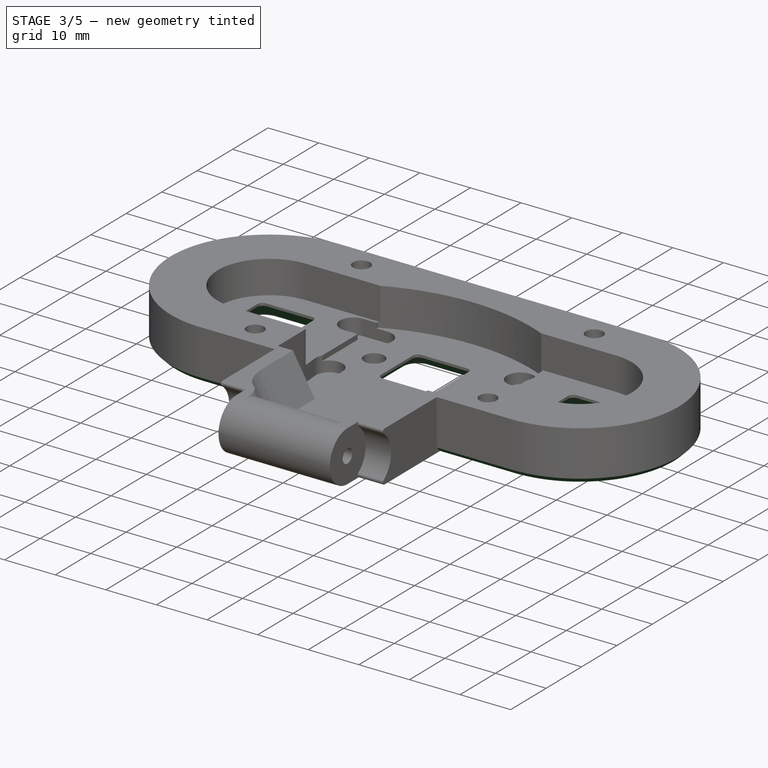
[diagram: stage 3 of 5 — iso view after this stage's code; geometry added in this stage tinted green]
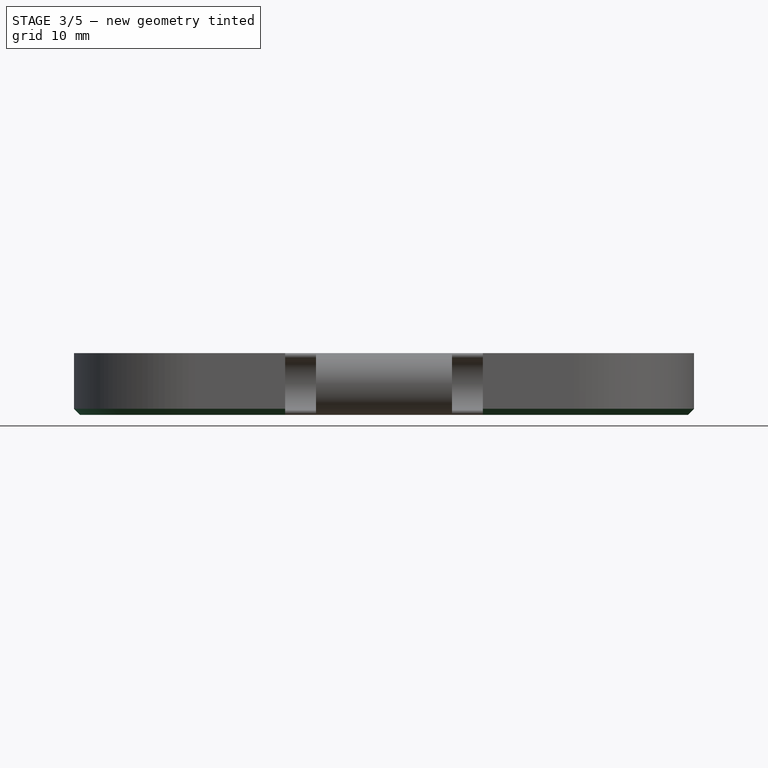
[diagram: stage 3 of 5 — front view after this stage's code; geometry added in this stage tinted green]
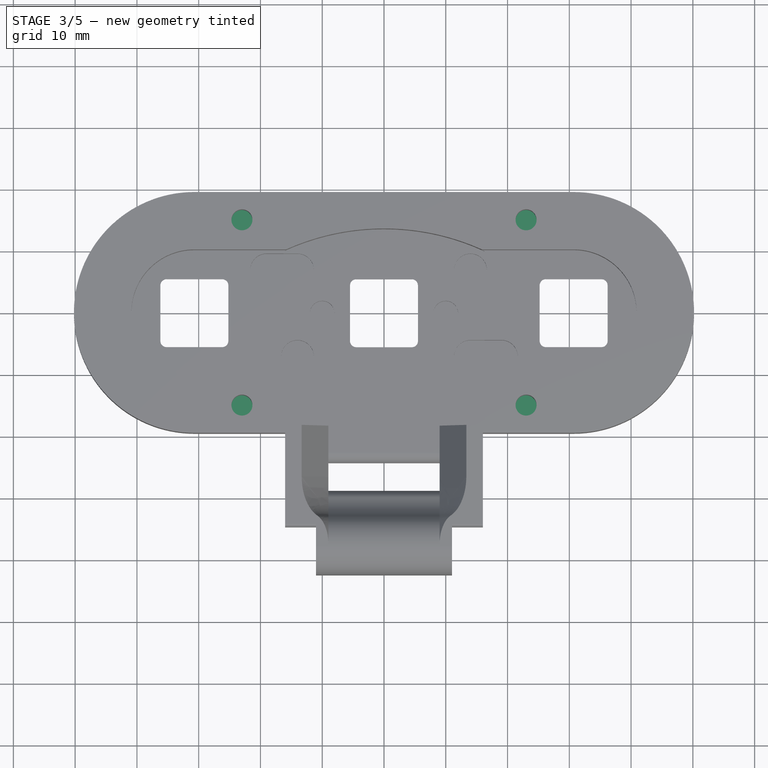
[diagram: stage 3 of 5 — top view after this stage's code; geometry added in this stage tinted green]
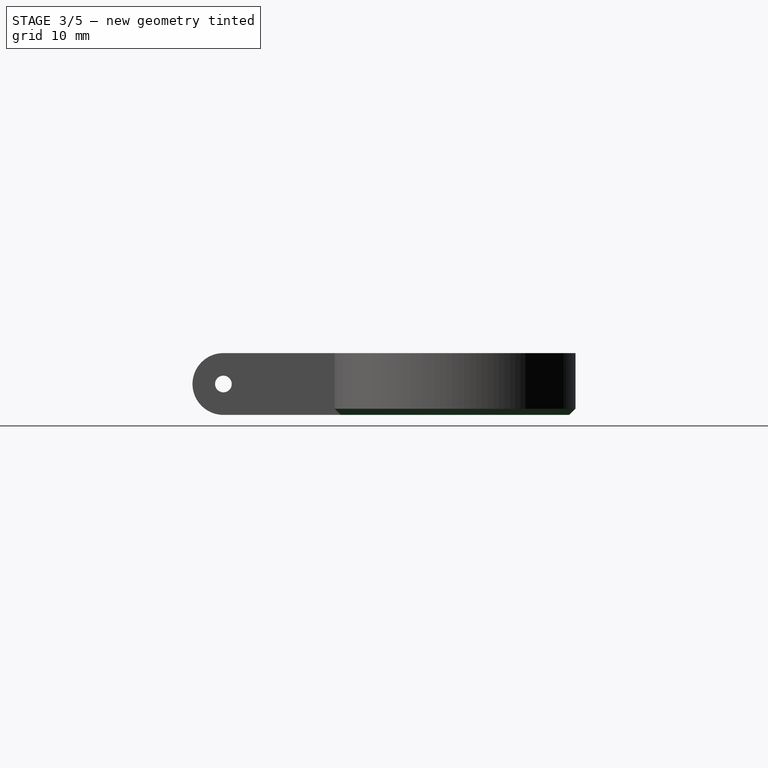
[diagram: stage 3 of 5 — right view after this stage's code; geometry added in this stage tinted green]
FEATURE [PartDesign::Chamfer] Chamfer
  Angle = 45
  Base = -> Mirrored [Edge54,Edge47,Edge48,Edge49,Edge50,Edge51,Edge52,Edge53]
  BaseFeature = -> Mirrored
  ChamferType = 0
  FlipDirection = false
  Size = 2
  Size2 = 1
  SupportTransform = false
  UseAllEdges = false
FEATURE [PartDesign::Chamfer] Chamfer001
  Angle = 45
  Base = -> Chamfer [Edge18,Edge19,Edge20,Edge21,Edge22,Edge23,Edge24,Edge17,Edge27,Edge28,Edge29,Edge30,Edge31,Edge32,Edge33,Edge26]
  BaseFeature = -> Chamfer
  ChamferType = 0
  FlipDirection = false
  Size = 3
  Size2 = 1
  SupportTransform = false
  UseAllEdges = false
FEATURE [PartDesign::Chamfer] Chamfer002
  Angle = 45
  Base = -> Chamfer001 [Edge19,Edge17,Edge18,Edge22,Edge21]
  BaseFeature = -> Chamfer001
  ChamferType = 0
  FlipDirection = false
  Size = 1
  Size2 = 1
  SupportTransform = false
  UseAllEdges = false
FEATURE [PartDesign::Fillet] Fillet
  Base = -> Chamfer002 [Edge47,Edge136,Edge134,Edge131,Edge49,Edge145,Edge171,Edge166]
  BaseFeature = -> Chamfer002
  Radius = 0.46
  SupportTransform = false
  UseAllEdges = false
FEATURE [Sketcher::SketchObject] Sketch013
  FullyConstrained = true
  MapMode = 5
  Placement = pos=(0,0,-7.6) rot=(1,0,0;3.14159rad)
  sketch-geometry (4):
    g0: Circle CenterX=-23 CenterY=15 CenterZ=0 NormalX=0 NormalY=0 NormalZ=1 AngleXU=0 Radius=3.05
    g1: Circle CenterX=-23 CenterY=-15 CenterZ=0 NormalX=0 NormalY=0 NormalZ=1 AngleXU=0 Radius=3.05
    g2: Circle CenterX=23 CenterY=15 CenterZ=0 NormalX=0 NormalY=0 NormalZ=1 AngleXU=0 Radius=3.05
    g3: Circle CenterX=23 CenterY=-15 CenterZ=0 NormalX=0 NormalY=0 NormalZ=1 AngleXU=0 Radius=3.05
  constraints (11):
    c: Vertical(g0,g1)
    c: Vertical(g3,g2)
    c: Horizontal(g0,g2)
    c: Horizontal(g1,g3)
    c: Symmetric(g1,g2,g-1)
    c: Equal(g0,g2)
    c: Equal(g2,g3)
    c: Equal(g3,g1)
    c: Diameter(g3) = 6.1
    c: DistanceX(g0,g2) = 46
    c: DistanceY(g1,g0) = 30
FEATURE [PartDesign::Pad] Pad002
  BaseFeature = -> Fillet
  Direction = (0,0,-1)
  Length = 0.2
  Length2 = 10
  Profile = -> Sketch013
  ReferenceAxis = -> Sketch013 [N_Axis]
  Refine = true
  Reversed = true
  Type = 0
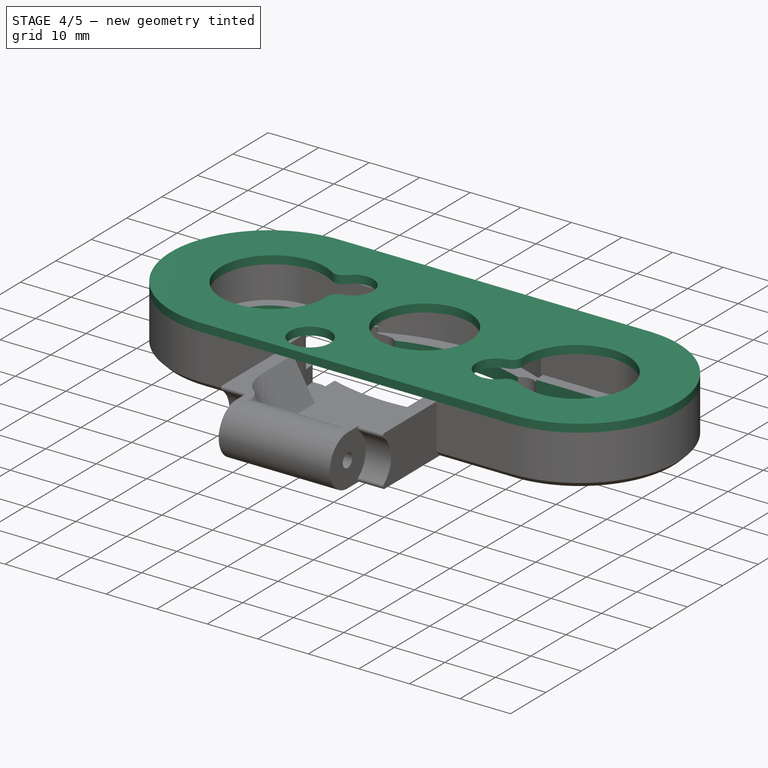
[diagram: stage 4 of 5 — iso view after this stage's code; geometry added in this stage tinted green]
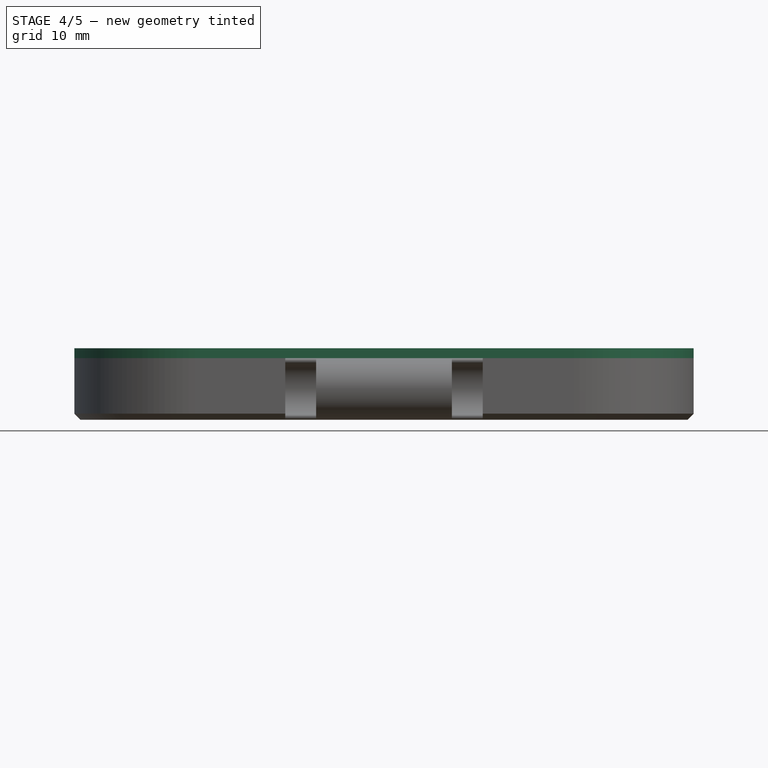
[diagram: stage 4 of 5 — front view after this stage's code; geometry added in this stage tinted green]
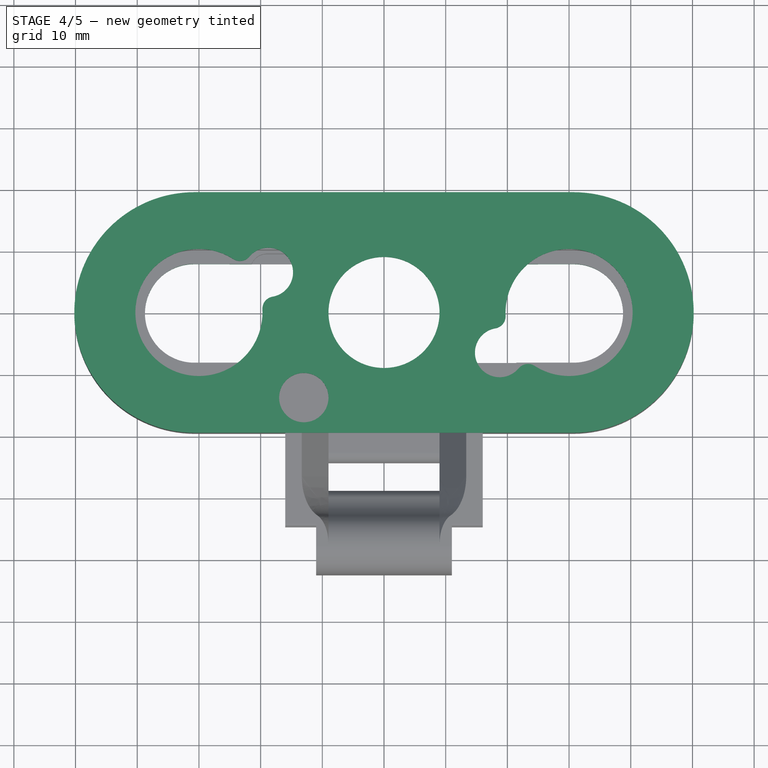
[diagram: stage 4 of 5 — top view after this stage's code; geometry added in this stage tinted green]
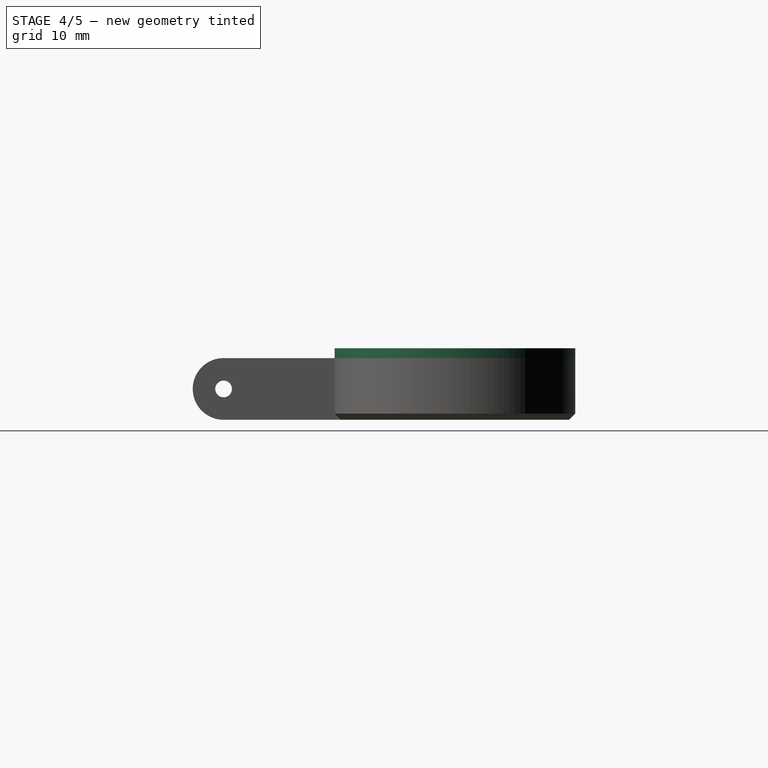
[diagram: stage 4 of 5 — right view after this stage's code; geometry added in this stage tinted green]
FEATURE [Sketcher::SketchObject] Sketch014
  FullyConstrained = true
  MapMode = 5
  Support = -> [XY_Plane001]
  sketch-geometry (16):
    g0: LineSegment StartX=-30.7 StartY=-19.5 StartZ=0 EndX=30.7 EndY=-19.5 EndZ=0
    g1: LineSegment StartX=30.7 StartY=19.5 StartZ=0 EndX=-30.7 EndY=19.5 EndZ=0
    g2: ArcOfCircle CenterX=-30 CenterY=0 CenterZ=0 NormalX=0 NormalY=0 NormalZ=1 AngleXU=0 Radius=10.3 StartAngle=0.999322 EndAngle=6.33106
    g3: ArcOfCircle CenterX=30 CenterY=0 CenterZ=0 NormalX=0 NormalY=0 NormalZ=1 AngleXU=0 Radius=10.3 StartAngle=4.14091 EndAngle=9.47265
    g4: Circle CenterX=0 CenterY=0 CenterZ=0 NormalX=0 NormalY=0 NormalZ=1 AngleXU=0 Radius=9
    g5: LineSegment StartX=-30 StartY=0 StartZ=0 EndX=-18.7417 EndY=6.5 EndZ=0
    g6: ArcOfCircle CenterX=-18.7417 CenterY=6.5 CenterZ=0 NormalX=0 NormalY=0 NormalZ=1 AngleXU=0 Radius=4 StartAngle=4.8845 EndAngle=8.72907
    g7: LineSegment StartX=30 StartY=0 StartZ=0 EndX=18.7417 EndY=-6.5 EndZ=0
    g8: ArcOfCircle CenterX=18.7417 CenterY=-6.5 CenterZ=0 NormalX=0 NormalY=0 NormalZ=1 AngleXU=0 Radius=4 StartAngle=1.74291 EndAngle=5.58748
    g9: Circle CenterX=-13 CenterY=-13.8 CenterZ=0 NormalX=0 NormalY=0 NormalZ=1 AngleXU=0 Radius=4
    g10: ArcOfCircle CenterX=23.3473 CenterY=-10.3456 CenterZ=0 NormalX=0 NormalY=0 NormalZ=1 AngleXU=0 Radius=2 StartAngle=0.999322 EndAngle=2.44588
    g11: ArcOfCircle CenterX=17.7141 CenterY=-0.588648 CenterZ=0 NormalX=0 NormalY=0 NormalZ=1 AngleXU=0 Radius=2 StartAngle=4.8845 EndAngle=6.33106
    g12: ArcOfCircle CenterX=-23.3473 CenterY=10.3456 CenterZ=0 NormalX=0 NormalY=0 NormalZ=1 AngleXU=0 Radius=2 StartAngle=4.14091 EndAngle=5.58748
    g13: ArcOfCircle CenterX=-17.7141 CenterY=0.588648 CenterZ=0 NormalX=0 NormalY=0 NormalZ=1 AngleXU=0 Radius=2 StartAngle=1.74291 EndAngle=3.18947
    g14: ArcOfCircle CenterX=-30.7 CenterY=0 CenterZ=0 NormalX=0 NormalY=0 NormalZ=1 AngleXU=0 Radius=19.5 StartAngle=1.5708 EndAngle=4.71239
    g15: ArcOfCircle CenterX=30.7 CenterY=0 CenterZ=0 NormalX=0 NormalY=0 NormalZ=1 AngleXU=0 Radius=19.5 StartAngle=4.71239 EndAngle=7.85398
  constraints (41):
    c: Equal(g2,g3)
    c: Diameter(g2) = 20.6
    c: Coincident(g4,g-1)
    c: Diameter(g4) = 18
    c: Angle(g-1,g5) = 0.523599
    c: Coincident(g6,g5)
    c: Diameter(g6) = 8
    c: Distance(g5) = 13
    c: Angle(g-1,g7) = 0.523599
    c: Equal(g5,g7)
    c: Coincident(g7,g8)
    c: Equal(g6,g8)
    c: Tangent(g8,g10) = 1.5708
    c: Tangent(g3,g10) = 1.5708
    c: Tangent(g8,g11) = 1.5708
    c: Tangent(g3,g11) = 1.5708
    c: Equal(g10,g11)
    c: Radius(g10) = 2
    c: Tangent(g2,g12) = 1.5708
    c: Tangent(g6,g12) = 1.5708
    c: Tangent(g2,g13) = 1.5708
    c: Tangent(g6,g13) = 1.5708
    c: Equal(g11,g12)
    c: Equal(g12,g13)
    c: DistanceX(g9,g4) = 13
    c: DistanceY(g9,g4) = 13.8
    c: Equal(g6,g9)
    c: PointOnObject(g14,g-1)
    c: Horizontal(g0)
    c: Tangent(g14,g1) = -1.5708
    c: Tangent(g14,g0) = -1.5708
    c: Tangent(g15,g0) = -1.5708
    c: Tangent(g15,g1) = -1.5708
    c: Symmetric(g14,g15,g-2)
    c: DistanceX(g1,g1) = 61.4
    c: DistanceX(g2,g3) = 60
    c: Coincident(g7,g3)
    c: Coincident(g5,g2)
    c: Symmetric(g2,g3,g-2)
    c: PointOnObject(g3,g-1)
    c: DistanceY(g0,g1) = 39
FEATURE [PartDesign::Pad] Pad003
  Direction = (0,0,1)
  Length = 1.6
  Length2 = 10
  Profile = -> Sketch014
  ReferenceAxis = -> Sketch014 [N_Axis]
  Type = 0
FEATURE [Sketcher::SketchObject] Sketch015
  FullyConstrained = true
  MapMode = 5
  Support = -> [XY_Plane001]
  sketch-geometry (5):
    g0: LineSegment StartX=10 StartY=-11.2 StartZ=0 EndX=16.5 EndY=-11.2 EndZ=0
    g1: LineSegment StartX=16.5 StartY=-11.2 StartZ=0 EndX=16.5 EndY=-17.2 EndZ=0
    g2: LineSegment StartX=16.5 StartY=-17.2 StartZ=0 EndX=10 EndY=-17.2 EndZ=0
    g3: LineSegment StartX=10 StartY=-17.2 StartZ=0 EndX=10 EndY=-11.2 EndZ=0
    g4: GeomPoint X=13.25 Y=-14.2 Z=0
  constraints (13):
    c: Coincident(g0,g1)
    c: Coincident(g1,g2)
    c: Coincident(g2,g3)
    c: Coincident(g3,g0)
    c: Horizontal(g0)
    c: Horizontal(g2)
    c: Vertical(g1)
    c: Vertical(g3)
    c: Symmetric(g2,g0,g4)
    c: DistanceY(g1,g1) = 6
    c: DistanceX(g1) = 16.5
    c: DistanceX(g2,g2) = 6.5
    c: DistanceY(g4,g-1) = 14.2
FEATURE [PartDesign::Pocket] Pocket007
  BaseFeature = -> Pad003
  Direction = (0,0,-1)
  Length = 1.2
  Length2 = 5
  Profile = -> Sketch015
  ReferenceAxis = -> Sketch015 [N_Axis]
  Reversed = true
  TaperAngle = -40
  Type = 0
FEATURE [PartDesign::Body] Body001  label="Cover"
  Group = -> [Sketch014,Pad003,Sketch015,Pocket007,Sketch016,Pad004,Sketch017,Hole001,Sketch018,Pad005,Sketch019,Pad006,Chamfer003,Chamfer004]
  Origin = -> Origin001
  Tip = -> Chamfer004
FEATURE [Sketcher::SketchObject] Sketch020
  FullyConstrained = true
  MapMode = 5
  Support = -> [XY_Plane]
  sketch-geometry (4):
    g0: Circle CenterX=-23 CenterY=15 CenterZ=0 NormalX=0 NormalY=0 NormalZ=1 AngleXU=0 Radius=2.85
    g1: Circle CenterX=23 CenterY=15 CenterZ=0 NormalX=0 NormalY=0 NormalZ=1 AngleXU=0 Radius=2.85
    g2: Circle CenterX=23 CenterY=-15 CenterZ=0 NormalX=0 NormalY=0 NormalZ=1 AngleXU=0 Radius=2.85
    g3: Circle CenterX=-23 CenterY=-15 CenterZ=0 NormalX=0 NormalY=0 NormalZ=1 AngleXU=0 Radius=2.85
  constraints (11):
    c: Vertical(g0,g3)
    c: Vertical(g1,g2)
    c: Horizontal(g0,g1)
    c: Horizontal(g3,g2)
    c: Symmetric(g3,g1,g-1)
    c: DistanceY(g3,g0) = 30
    c: DistanceX(g0,g1) = 46
    c: Equal(g2,g3)
    c: Equal(g2,g0)
    c: Equal(g2,g1)
    c: Diameter(g2) = 5.7
FEATURE [PartDesign::Pocket] Pocket008
  BaseFeature = -> Pad002
  Direction = (0,0,-1)
  Length = 4.4
  Length2 = 5
  Profile = -> Sketch020
  ReferenceAxis = -> Sketch020 [N_Axis]
  Type = 0
FEATURE [PartDesign::Chamfer] Chamfer005
  Angle = 45
  Base = -> Pocket008 [Edge44,Edge45,Edge43,Edge42]
  BaseFeature = -> Pocket008
  ChamferType = 0
  FlipDirection = false
  Size = 0.6
  Size2 = 1
  SupportTransform = false
  UseAllEdges = false
FEATURE [PartDesign::Body] Body  label="Backside"
  Group = -> [Sketch,Sketch001,Sketch002,Sketch003,Sketch004,Pad,Sketch011,Hole,Pocket,Pocket001,Pocket002,Sketch005,Pocket003,Sketch006,Pocket004,Sketch007,Pad001,Sketch009,Sketch008,SubtractivePipe,Sketch010,Pocket005,Sketch012,Pocket006,Mirrored,Chamfer,Chamfer001,Chamfer002,Fillet,Sketch013,Pad002,Sketch020,Pocket008,Chamfer005]
  Origin = -> Origin
  Tip = -> Chamfer005
FEATURE [PartDesign::FeatureBase] Clone
  BaseFeature = -> Body
FEATURE [Sketcher::SketchObject] Sketch021
  FullyConstrained = true
  MapMode = 5
  Support = -> [XY_Plane002]
  sketch-geometry (10):
    g0: ArcOfCircle CenterX=-30.75 CenterY=-1e-16 CenterZ=0 NormalX=0 NormalY=0 NormalZ=1 AngleXU=0 Radius=8 StartAngle=1.5708 EndAngle=4.71239
    g1: ArcOfCircle CenterX=30.75 CenterY=1e-16 CenterZ=0 NormalX=0 NormalY=0 NormalZ=1 AngleXU=0 Radius=8 StartAngle=4.71239 EndAngle=7.85398
    g2: LineSegment StartX=-30.75 StartY=-8 StartZ=0 EndX=-14.5945 EndY=-8 EndZ=0
    g3: LineSegment StartX=30.75 StartY=8 StartZ=0 EndX=14.5945 EndY=8 EndZ=0
    g4: ArcOfCircle CenterX=0 CenterY=-26 CenterZ=0 NormalX=0 NormalY=0 NormalZ=1 AngleXU=0 Radius=37 StartAngle=1.16533 EndAngle=1.97626
    g5: LineSegment StartX=-14.5945 StartY=8 StartZ=0 EndX=-30.75 EndY=8 EndZ=0
    g6: GeomPoint X=0 Y=11 Z=0
    g7: ArcOfCircle CenterX=0 CenterY=26 CenterZ=0 NormalX=0 NormalY=0 NormalZ=1 AngleXU=0 Radius=37 StartAngle=4.30692 EndAngle=5.11785
    g8: LineSegment StartX=14.5945 StartY=-8 StartZ=0 EndX=30.75 EndY=-8 EndZ=0
    g9: GeomPoint X=0 Y=-11 Z=0
  constraints (26):
    c: Tangent(g0,g2) = -1.5708
    c: Tangent(g1,g3) = -1.5708
    c: Equal(g0,g1)
    c: Horizontal(g3)
    c: Symmetric(g0,g1,g-1)
    c: DistanceX(g0,g1) = 61.5
    c: DistanceY(g0,g0) = 16
    c: Coincident(g3,g4)
    c: Coincident(g5,g4)
    c: Horizontal(g4,g3)
    c: PointOnObject(g6,g4)
    c: PointOnObject(g6,g-2)
    c: PointOnObject(g7,g-2)
    c: Coincident(g2,g7)
    c: Coincident(g8,g7)
    c: Horizontal(g2,g7)
    c: PointOnObject(g9,g7)
    c: PointOnObject(g9,g-2)
    c: Horizontal(g2)
    c: Horizontal(g5)
    c: Tangent(g8,g1) = -1.5708
    c: Tangent(g5,g0) = -1.5708
    c: DistanceY(g4,g7) = 52
    c: Symmetric(g4,g7,g-1)
    c: Radius(g4) = 37
    c: Equal(g4,g7)
FEATURE [PartDesign::Pocket] Pocket009
  BaseFeature = -> Clone
  Direction = (0,0,-1)
  Length = 5
  Length2 = 5
  Profile = -> Sketch021
  ReferenceAxis = -> Sketch021 [N_Axis]
  Refine = true
  Type = 1
FEATURE [PartDesign::Body] Body002  label="BacksideFreeCut"
  Group = -> [Clone,Sketch021,Pocket009]
  Origin = -> Origin002
  Tip = -> Pocket009
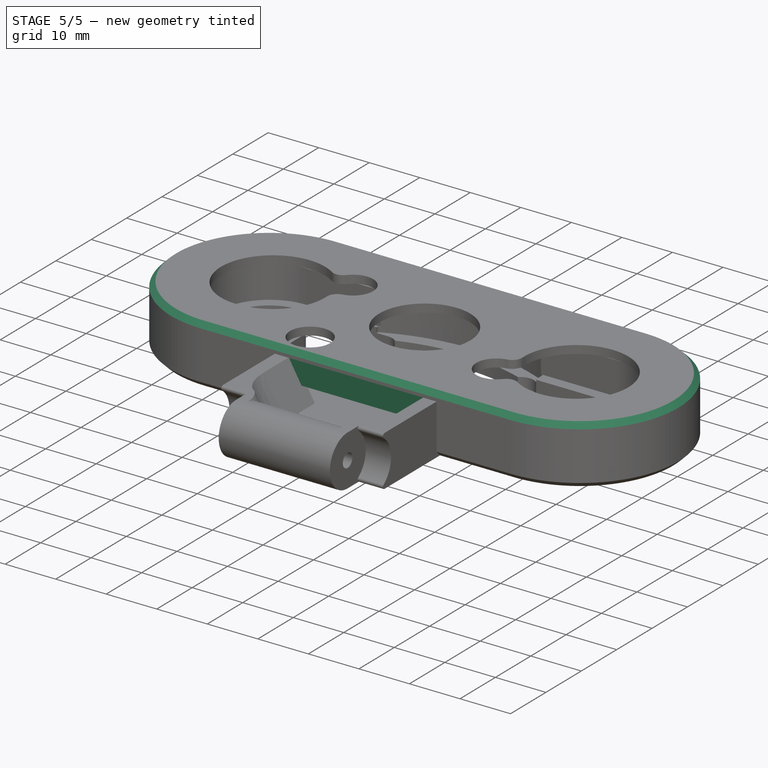
[diagram: stage 5 of 5 — iso view after this stage's code; geometry added in this stage tinted green]
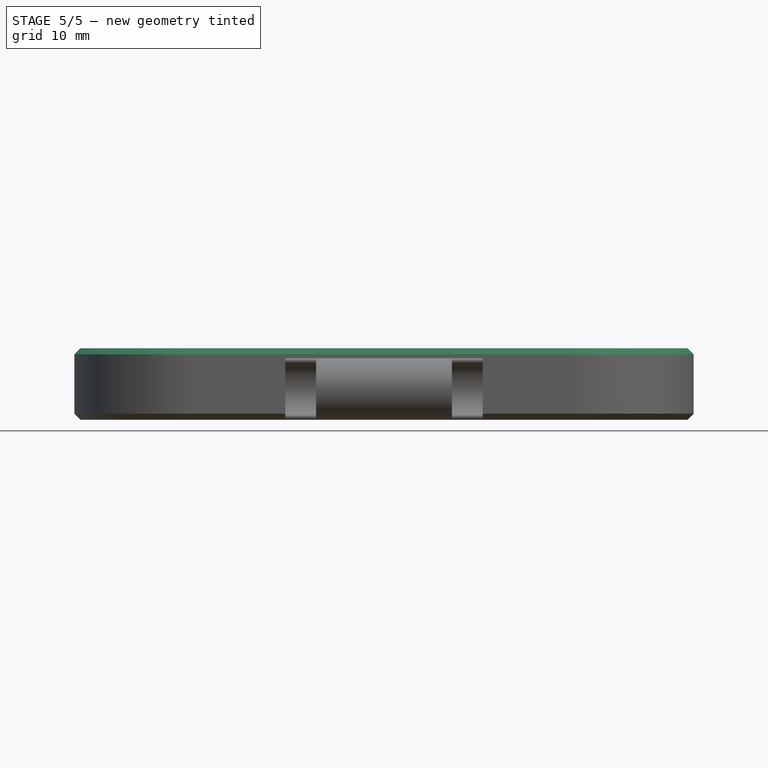
[diagram: stage 5 of 5 — front view after this stage's code; geometry added in this stage tinted green]
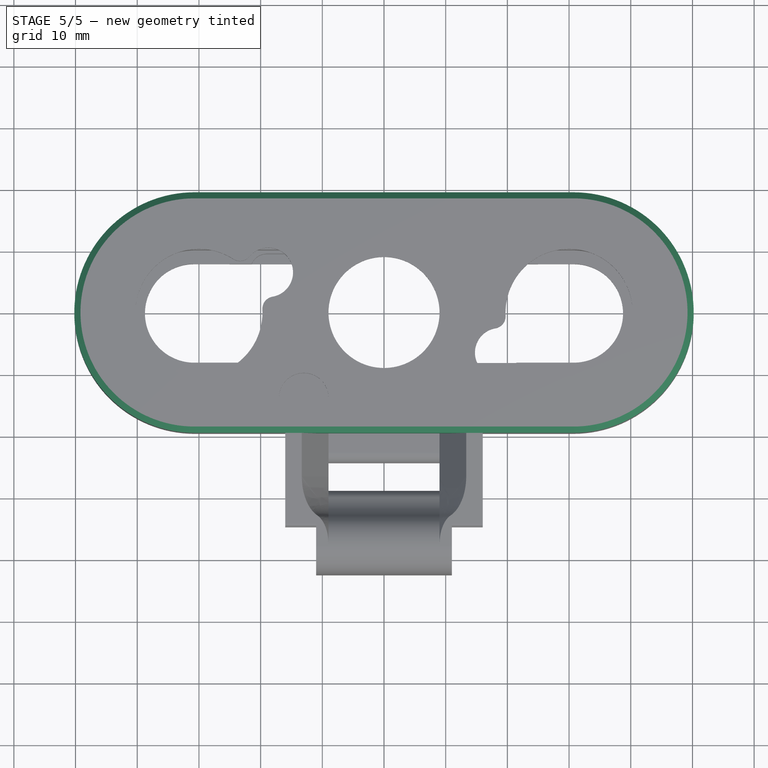
[diagram: stage 5 of 5 — top view after this stage's code; geometry added in this stage tinted green]
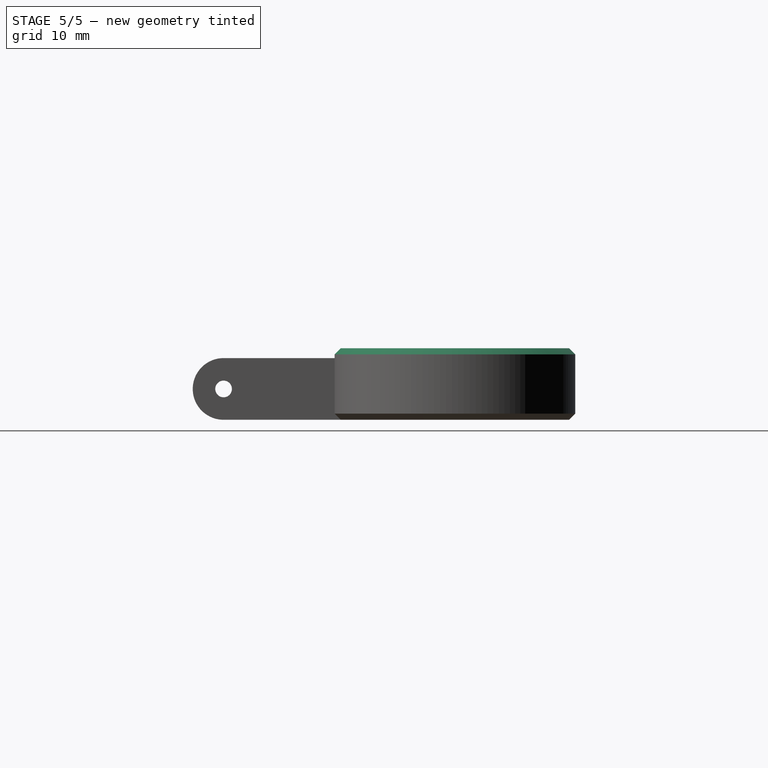
[diagram: stage 5 of 5 — right view after this stage's code; geometry added in this stage tinted green]
FEATURE [Sketcher::SketchObject] Sketch016
  FullyConstrained = true
  MapMode = 5
  Support = -> [XY_Plane001]
  sketch-geometry (4):
    g0: Circle CenterX=-23 CenterY=15 CenterZ=0 NormalX=0 NormalY=0 NormalZ=1 AngleXU=0 Radius=2.65
    g1: Circle CenterX=23 CenterY=15 CenterZ=0 NormalX=0 NormalY=0 NormalZ=1 AngleXU=0 Radius=2.65
    g2: Circle CenterX=23 CenterY=-15 CenterZ=0 NormalX=0 NormalY=0 NormalZ=1 AngleXU=0 Radius=2.65
    g3: Circle CenterX=-23 CenterY=-15 CenterZ=0 NormalX=0 NormalY=0 NormalZ=1 AngleXU=0 Radius=2.65
  constraints (11):
    c: Equal(g2,g3)
    c: Equal(g2,g0)
    c: Equal(g2,g1)
    c: Diameter(g2) = 5.3
    c: Horizontal(g0,g1)
    c: Horizontal(g3,g2)
    c: Vertical(g0,g3)
    c: Vertical(g1,g2)
    c: Symmetric(g3,g1,g-1)
    c: DistanceY(g3,g0) = 30
    c: DistanceX(g0,g1) = 46
FEATURE [PartDesign::Pad] Pad004
  BaseFeature = -> Pocket007
  Direction = (0,0,1)
  Length = 4
  Length2 = 10
  Profile = -> Sketch016
  ReferenceAxis = -> Sketch016 [N_Axis]
  Reversed = true
  Type = 0
FEATURE [Sketcher::SketchObject] Sketch017
  AttachmentOffset = pos=(0,0,-4) rot=(0,0,1;0rad)
  FullyConstrained = true
  MapMode = 5
  Placement = pos=(0,0,-4) rot=(0,0,1;0rad)
  Support = -> [XY_Plane001]
  sketch-geometry (4):
    g0: Circle CenterX=-23 CenterY=15 CenterZ=0 NormalX=0 NormalY=0 NormalZ=1 AngleXU=0 Radius=1.35
    g1: Circle CenterX=23 CenterY=15 CenterZ=0 NormalX=0 NormalY=0 NormalZ=1 AngleXU=0 Radius=1.35
    g2: Circle CenterX=23 CenterY=-15 CenterZ=0 NormalX=0 NormalY=0 NormalZ=1 AngleXU=0 Radius=1.35
    g3: Circle CenterX=-23 CenterY=-15 CenterZ=0 NormalX=0 NormalY=0 NormalZ=1 AngleXU=0 Radius=1.35
  constraints (11):
    c: Equal(g2,g3)
    c: Equal(g2,g0)
    c: Equal(g2,g1)
    c: Diameter(g2) = 2.7
    c: Horizontal(g0,g1)
    c: Horizontal(g3,g2)
    c: Vertical(g0,g3)
    c: Vertical(g1,g2)
    c: Symmetric(g3,g1,g-1)
    c: DistanceY(g3,g0) = 30
    c: DistanceX(g0,g1) = 46
FEATURE [PartDesign::Hole] Hole001
  BaseFeature = -> Pad004
  CustomThreadClearance = 0
  Depth = 4.2
  DepthType = 0
  Diameter = 2.5
  DrillForDepth = false
  DrillPoint = 1
  DrillPointAngle = 118
  HoleCutCountersinkAngle = 90
  HoleCutCustomValues = false
  HoleCutDepth = 0
  HoleCutDiameter = 6.1
  HoleCutType = 0
  ModelThread = false
  Profile = -> Sketch017
  Reversed = true
  Tapered = false
  TaperedAngle = 90
  ThreadClass = 0
  ThreadDepth = 4.2
  ThreadDepthType = 0
  ThreadDirection = 0
  ThreadFit = 0
  ThreadSize = 9
  ThreadType = 1
  Threaded = true
  UseCustomThreadClearance = false
FEATURE [Sketcher::SketchObject] Sketch018
  AttachmentOffset = pos=(0,0,19.5) rot=(0,0,1;0rad)
  FullyConstrained = true
  MapMode = 5
  Placement = pos=(0,-19.5,-4.3e-15) rot=(1,0,0;1.5708rad)
  Support = -> [XZ_Plane001]
  sketch-geometry (4):
    g0: LineSegment StartX=-13.2 StartY=0 StartZ=0 EndX=-10.7174 EndY=-4.3 EndZ=0
    g1: LineSegment StartX=-10.7174 StartY=-4.3 StartZ=0 EndX=10.7174 EndY=-4.3 EndZ=0
    g2: LineSegment StartX=10.7174 StartY=-4.3 StartZ=0 EndX=13.2 EndY=0 EndZ=0
    g3: LineSegment StartX=13.2 StartY=0 StartZ=0 EndX=-13.2 EndY=0 EndZ=0
  constraints (11):
    c: Coincident(g0,g1)
    c: Coincident(g1,g2)
    c: Coincident(g2,g3)
    c: Coincident(g3,g0)
    c: Horizontal(g3)
    c: PointOnObject(g-1,g3)
    c: Symmetric(g0,g1,g-2)
    c: Equal(g0,g2)
    c: Angle(g2,g0) = 1.0472
    c: DistanceX(g3,g3) = 26.4
    c: DistanceY(g0,g0) = 4.3
FEATURE [PartDesign::Pad] Pad005
  BaseFeature = -> Hole001
  Direction = (0,-1,-2e-16)
  Length = 1.3
  Length2 = 10
  Profile = -> Sketch018
  ReferenceAxis = -> Sketch018 [N_Axis]
  Reversed = true
  Type = 0
FEATURE [Sketcher::SketchObject] Sketch019
  FullyConstrained = true
  MapMode = 5
  Placement = pos=(0,0,0) rot=(0.57735,0.57735,0.57735;2.0944rad)
  Support = -> [YZ_Plane001]
  sketch-geometry (3):
    g0: LineSegment StartX=-18.2 StartY=-3 StartZ=0 EndX=-18.2 EndY=0 EndZ=0
    g1: LineSegment StartX=-18.2 StartY=0 StartZ=0 EndX=-15.2 EndY=0 EndZ=0
    g2: LineSegment StartX=-15.2 StartY=0 StartZ=0 EndX=-18.2 EndY=-3 EndZ=0
  constraints (9):
    c: PointOnObject(g0,g-1)
    c: Vertical(g0)
    c: Coincident(g0,g1)
    c: PointOnObject(g1,g-1)
    c: Coincident(g1,g2)
    c: Coincident(g2,g0)
    c: Equal(g0,g1)
    c: DistanceX(g0,g-1) = 18.2
    c: DistanceY(g0,g0) = 3
FEATURE [PartDesign::Pad] Pad006
  BaseFeature = -> Pad005
  Direction = (1,-2e-16,3e-16)
  Length = 13
  Length2 = 10
  Midplane = true
  Profile = -> Sketch019
  ReferenceAxis = -> Sketch019 [N_Axis]
  Type = 0
FEATURE [PartDesign::Chamfer] Chamfer003
  Angle = 45
  Base = -> Pad006 [Edge64,Edge85,Edge88,Edge75]
  BaseFeature = -> Pad006
  ChamferType = 0
  FlipDirection = false
  Size = 0.6
  Size2 = 1
  SupportTransform = false
  UseAllEdges = false
FEATURE [PartDesign::Chamfer] Chamfer004
  Angle = 45
  Base = -> Chamfer003 [Edge56]
  BaseFeature = -> Chamfer003
  ChamferType = 0
  FlipDirection = false
  Size = 1
  Size2 = 1
  SupportTransform = false
  UseAllEdges = false
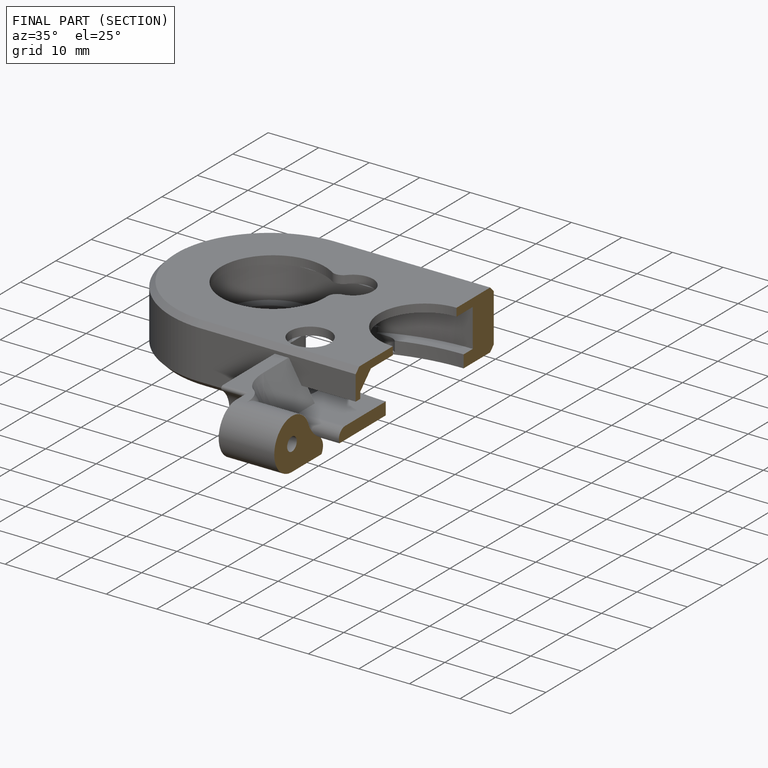
[diagram: finished part — half-section view (interior)]
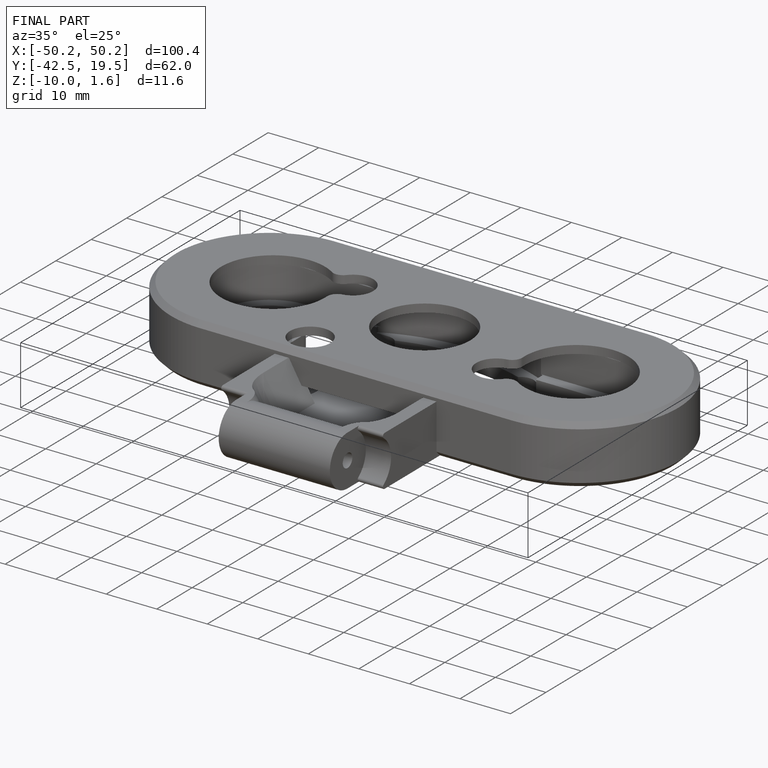
[diagram: finished part — iso view with bounding-box wireframe]
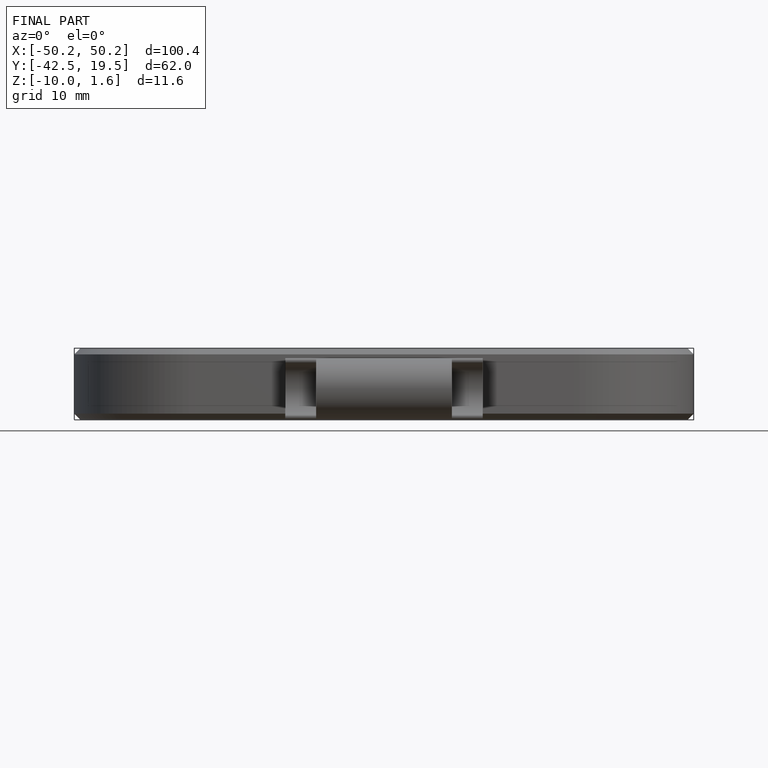
[diagram: finished part — front view with bounding-box wireframe]
